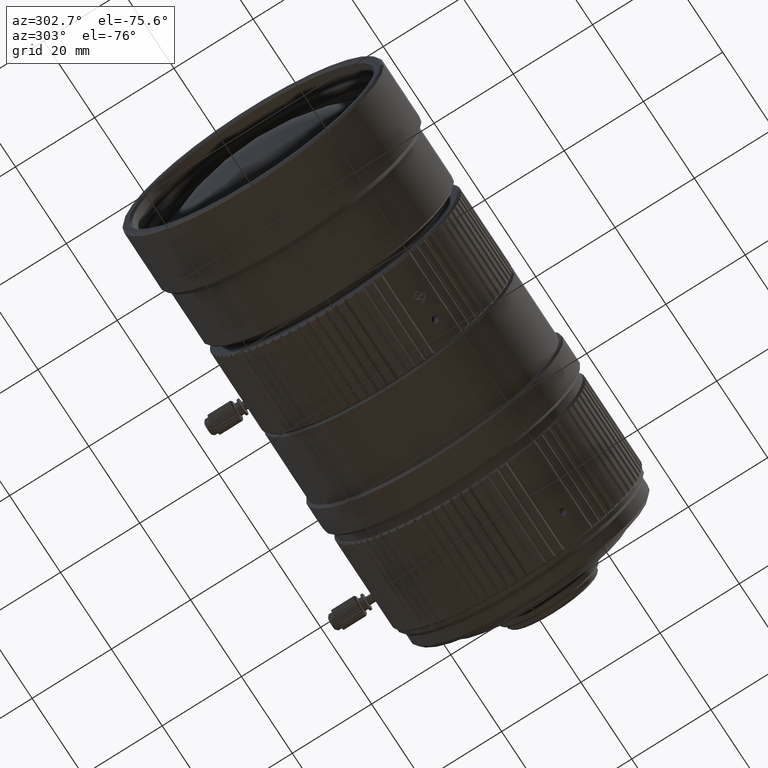
[diagram: clean part render]
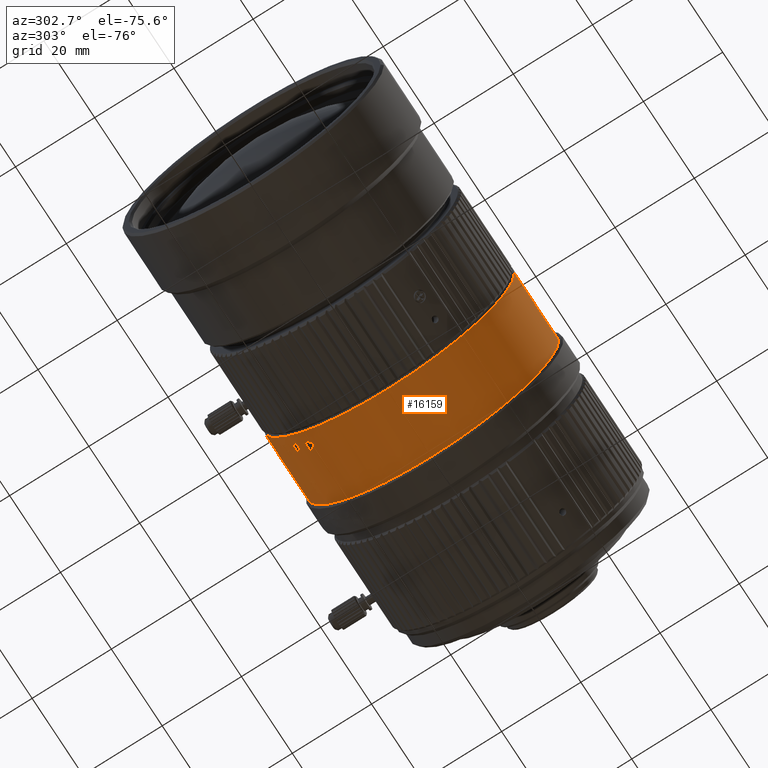
[diagram: same view with one face highlighted and labeled with its STEP entity id]
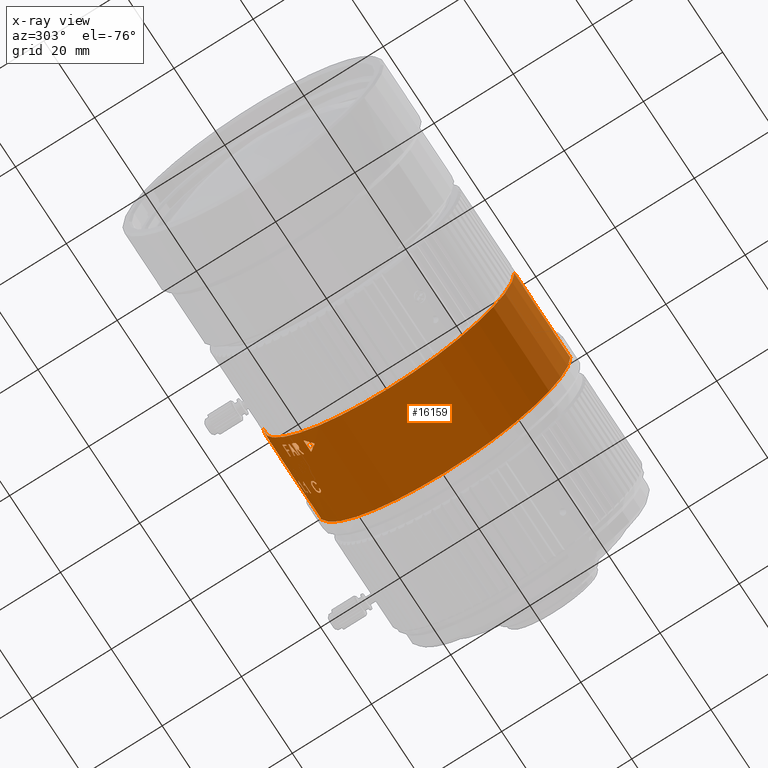
[diagram: x-ray of the same camera — body ghosted, the highlighted face saturated]
A machine part, auxiliary view. The second image highlights one B-rep face of the part: STEP entity #16159.
The next image is the same camera in x-ray: the body ghosted, the highlighted face saturated — about 0% of this face is hidden behind the body in this view.
In plain terms, the highlighted cylindrical surface (partial cylindrical patch) has radius 31.7 mm, axis along (-1, 0, 0).
Its self-contained STEP definition (entity closure, byte-faithful):
#193 = LINE ( 'NONE', #10280, #30644 ) ;
#210 = B_SPLINE_CURVE_WITH_KNOTS ( 'NONE', 3,
 ( #27335, #42246, #83740, #45263 ),
 .UNSPECIFIED., .F., .F.,
 ( 4, 4 ),
 ( 4.167354370948970213E-08, 1.000000000000000000 ),
 .UNSPECIFIED. ) ;
#300 = CARTESIAN_POINT ( 'NONE',  ( 32.41228070175399978, 28.10031740469357686, -14.67181521678477019 ) ) ;
#408 = CARTESIAN_POINT ( 'NONE',  ( 41.56668323426981715, 31.56863735184727560, -2.883011581024027770 ) ) ;
#465 = EDGE_CURVE ( 'NONE', #104667, #97776, #31164, .T. ) ;
#634 = EDGE_LOOP ( 'NONE', ( #52837, #72519, #51322, #28625, #102488, #17563, #81271, #102353 ) ) ;
#951 = CARTESIAN_POINT ( 'NONE',  ( 32.10233918128633235, 26.20620866454695985, -17.83623644010592457 ) ) ;
#985 = DIRECTION ( 'NONE',  ( -4.377851043474591935E-16, -1.000000000000000000, 0.000000000000000000 ) ) ;
#1143 = CARTESIAN_POINT ( 'NONE',  ( 39.30872246770148593, 26.80952477746252427, -16.91580364655804303 ) ) ;
#1222 = CARTESIAN_POINT ( 'NONE',  ( 38.96153846153789857, 26.76059067308387540, -16.99296286195164285 ) ) ;
#1255 = CARTESIAN_POINT ( 'NONE',  ( 38.99999999999998579, 3.312877487234791001E-14, 1.857100332100287416E-15 ) ) ;
#1297 = CARTESIAN_POINT ( 'NONE',  ( 49.50000000000001421, 31.69449529679860333, -0.5907350346921764750 ) ) ;
#1308 = EDGE_CURVE ( 'NONE', #52820, #44942, #4458, .T. ) ;
#1441 = LINE ( 'NONE', #41394, #102516 ) ;
#1541 = CARTESIAN_POINT ( 'NONE',  ( 39.19939120932968279, 30.30239701440893896, -9.308901713139363210 ) ) ;
#1940 = ORIENTED_EDGE ( 'NONE', *, *, #27490, .T. ) ;
#2064 = CARTESIAN_POINT ( 'NONE',  ( 39.74999999999975131, 30.50150450491772247, -8.634131278621930861 ) ) ;
#2099 = VECTOR ( 'NONE', #46837, 1000.000000000000000 ) ;
#2320 = VERTEX_POINT ( 'NONE', #12153 ) ;
#2518 = CARTESIAN_POINT ( 'NONE',  ( 31.48245614035099393, 26.72109128020910873, -17.05500749911107050 ) ) ;
#2590 = CARTESIAN_POINT ( 'NONE',  ( 49.50000000000001421, 29.37888915872233753, -11.90675740071613298 ) ) ;
#2666 = AXIS2_PLACEMENT_3D ( 'NONE', #20263, #11159, #100070 ) ;
#2695 = CARTESIAN_POINT ( 'NONE',  ( 39.00133069535483799, 31.49790854354246505, -3.574777583587379848 ) ) ;
#3243 = EDGE_LOOP ( 'NONE', ( #29722, #71525, #23972, #49913, #14687 ) ) ;
#3266 = CIRCLE ( 'NONE', #35586, 31.69999999999999929 ) ;
#3321 = CARTESIAN_POINT ( 'NONE',  ( 39.95032098673544851, 30.41642460780103363, -8.929418632969055025 ) ) ;
#3352 = CARTESIAN_POINT ( 'NONE',  ( 41.03966346153799805, 26.07946198499074342, -18.02086742011647402 ) ) ;
#3355 = CARTESIAN_POINT ( 'NONE',  ( 39.92427884615455014, 26.36044700844664845, -17.60729489486899979 ) ) ;
#3393 = CARTESIAN_POINT ( 'NONE',  ( 32.41228070175399978, 26.85243140072906343, -16.84746057627503646 ) ) ;
#3398 = VERTEX_POINT ( 'NONE', #22146 ) ;
#3521 = CARTESIAN_POINT ( 'NONE',  ( 39.72452330224776773, 31.69974983222048692, -0.1415447074715102116 ) ) ;
#3528 = CARTESIAN_POINT ( 'NONE',  ( 39.08510095388394490, 31.43762358475347796, -4.070742786001120272 ) ) ;
#4027 = EDGE_CURVE ( 'NONE', #29706, #71875, #92953, .T. ) ;
#4101 = ORIENTED_EDGE ( 'NONE', *, *, #13331, .T. ) ;
#4169 = CARTESIAN_POINT ( 'NONE',  ( 49.50000000000000000, 3.882130353309943381E-15, -31.70000000002390905 ) ) ;
#4366 = DIRECTION ( 'NONE',  ( 1.000000000000000000, -4.482919468517999733E-16, 1.614869854000199883E-16 ) ) ;
#4371 = CARTESIAN_POINT ( 'NONE',  ( 30.40000006251059617, 21.53314541774336988, -23.28011272013181809 ) ) ;
#4445 = ORIENTED_EDGE ( 'NONE', *, *, #12956, .T. ) ;
#4458 = CIRCLE ( 'NONE', #97964, 31.69999999999999929 ) ;
#4463 = ORIENTED_EDGE ( 'NONE', *, *, #100818, .T. ) ;
#4609 = ORIENTED_EDGE ( 'NONE', *, *, #91508, .T. ) ;
#4636 = DIRECTION ( 'NONE',  ( -4.377851043474591935E-16, -1.000000000000000000, 0.000000000000000000 ) ) ;
#4687 = VERTEX_POINT ( 'NONE', #9896 ) ;
#4924 = CARTESIAN_POINT ( 'NONE',  ( 39.30960677289672134, 26.72413712955343357, -17.05046420687913766 ) ) ;
#4968 = EDGE_CURVE ( 'NONE', #54477, #2320, #17905, .T. ) ;
#4976 = CARTESIAN_POINT ( 'NONE',  ( 42.02948062230483117, 31.46802414711990536, -3.828877455027395182 ) ) ;
#5010 = CARTESIAN_POINT ( 'NONE',  ( 41.99999999999999289, 31.69932966469246693, -0.2061523930266457028 ) ) ;
#5113 = CARTESIAN_POINT ( 'NONE',  ( 29.41349084665305824, 25.19922606042946001, -19.23259532516822645 ) ) ;
#5119 = DIRECTION ( 'NONE',  ( -1.000000000000000000, 4.482919468517999733E-16, -1.614869854000199883E-16 ) ) ;
#5332 = EDGE_CURVE ( 'NONE', #26052, #23027, #87459, .T. ) ;
#5337 = CARTESIAN_POINT ( 'NONE',  ( 49.50000000000001421, 25.75724838030216191, -18.47847818072210657 ) ) ;
#5412 = CARTESIAN_POINT ( 'NONE',  ( 41.66090369432429696, 31.56406918224252678, -2.932602374576829263 ) ) ;
#5458 = VERTEX_POINT ( 'NONE', #54599 ) ;
#5469 = CARTESIAN_POINT ( 'NONE',  ( 38.99999999999999289, 28.95751484200477321, -12.89776469684089300 ) ) ;
#5615 = ORIENTED_EDGE ( 'NONE', *, *, #48970, .T. ) ;
#5926 = CARTESIAN_POINT ( 'NONE',  ( 40.62741817552571177, 31.58442874748691054, -2.704415483380309571 ) ) ;
#6142 = CARTESIAN_POINT ( 'NONE',  ( 41.32618098091243297, 26.39613276750645809, -17.55380766739424558 ) ) ;
#6166 = CIRCLE ( 'NONE', #87770, 31.69999999999999929 ) ;
#6365 = ORIENTED_EDGE ( 'NONE', *, *, #29262, .T. ) ;
#6529 = VERTEX_POINT ( 'NONE', #92650 ) ;
#6542 = CARTESIAN_POINT ( 'NONE',  ( 40.86107268894938471, 31.36358772526553196, -4.606077634814152333 ) ) ;
#6565 = VERTEX_POINT ( 'NONE', #43185 ) ;
#6739 = CARTESIAN_POINT ( 'NONE',  ( 41.68529296170780896, 26.85416658881933216, -16.84484019779868191 ) ) ;
#6980 = CARTESIAN_POINT ( 'NONE',  ( 31.97953216374233776, 24.99043960777227724, -19.50415980092267887 ) ) ;
#7061 = DIRECTION ( 'NONE',  ( -4.377851043474591935E-16, -1.000000000000000000, 0.000000000000000000 ) ) ;
#7070 = CARTESIAN_POINT ( 'NONE',  ( 30.21090715281429695, 24.65230532867278512, -19.92871905542597943 ) ) ;
#7103 = CARTESIAN_POINT ( 'NONE',  ( 30.90633306264810898, 24.81588883902259468, -19.72478196794551408 ) ) ;
#7104 = CARTESIAN_POINT ( 'NONE',  ( 30.38888888888866546, 26.76618407087137541, -16.98666790975456564 ) ) ;
#7191 = VERTEX_POINT ( 'NONE', #44742 ) ;
#7202 = CYLINDRICAL_SURFACE ( 'NONE', #24941, 31.69999999999999929 ) ;
#7255 = EDGE_CURVE ( 'NONE', #19636, #80676, #69730, .T. ) ;
#7478 = CARTESIAN_POINT ( 'NONE',  ( 49.50000000000001421, 31.65200450040898161, -1.743734815300491903 ) ) ;
#7487 = CARTESIAN_POINT ( 'NONE',  ( 41.74700719550620676, 27.24325297857091499, -16.20832552718400876 ) ) ;
#7620 = CARTESIAN_POINT ( 'NONE',  ( 31.06140350877199907, 25.01146316160959771, -19.47605479853267596 ) ) ;
#7670 = CARTESIAN_POINT ( 'NONE',  ( 41.10909659042383169, 26.09001212534773728, -18.00559945448712185 ) ) ;
#7718 = DIRECTION ( 'NONE',  ( -1.000000000000000000, 4.239707319298500222E-16, 1.614869854000199883E-16 ) ) ;
#7772 = DIRECTION ( 'NONE',  ( -4.377851043474591935E-16, -1.000000000000000000, 0.000000000000000000 ) ) ;
#7796 = DIRECTION ( 'NONE',  ( -4.377851043474591935E-16, -1.000000000000000000, 0.000000000000000000 ) ) ;
#7968 = CIRCLE ( 'NONE', #87842, 31.69999999999999929 ) ;
#7970 = VECTOR ( 'NONE', #77735, 1000.000000000000000 ) ;
#8006 = VERTEX_POINT ( 'NONE', #104107 ) ;
#8106 = CARTESIAN_POINT ( 'NONE',  ( 32.39999999999999858, 22.76403252652616160, -22.06102497916315031 ) ) ;
#8142 = CARTESIAN_POINT ( 'NONE',  ( 41.99999999999998579, 3.178389903179250477E-14, 2.341561288300347800E-15 ) ) ;
#8203 = CARTESIAN_POINT ( 'NONE',  ( 42.01303358238266838, 26.60191799973906868, -17.24044687551867128 ) ) ;
#8592 = CARTESIAN_POINT ( 'NONE',  ( 39.58879901480578667, 26.17483631368503438, -17.88207553469833400 ) ) ;
#8743 = VERTEX_POINT ( 'NONE', #47446 ) ;
#8882 = EDGE_CURVE ( 'NONE', #16909, #104667, #89820, .T. ) ;
#9057 = VECTOR ( 'NONE', #68436, 1000.000000000000000 ) ;
#9063 = CIRCLE ( 'NONE', #37972, 31.69999999999999929 ) ;
#9106 = CARTESIAN_POINT ( 'NONE',  ( 39.05026988334295623, 26.48205981877934789, -17.42430126409644231 ) ) ;
#9113 = CARTESIAN_POINT ( 'NONE',  ( 38.96153846153789857, 26.76059067308387540, -16.99296286195164285 ) ) ;
#9459 = CARTESIAN_POINT ( 'NONE',  ( 31.48245614035099393, 26.29790206350583759, -17.70057476632488047 ) ) ;
#9889 = CARTESIAN_POINT ( 'NONE',  ( 38.99999999999999289, 31.69449529679861755, -0.5907350346921803608 ) ) ;
#9896 = CARTESIAN_POINT ( 'NONE',  ( 27.49999999999998224, -31.69999999996887041, 1.922430259171951161E-15 ) ) ;
#10164 = CARTESIAN_POINT ( 'NONE',  ( 40.18001424964626267, 31.58386134508033649, -2.711128736514997417 ) ) ;
#10168 = CARTESIAN_POINT ( 'NONE',  ( 38.96272530027545145, 26.72544750363371335, -17.04830647567309398 ) ) ;
#10184 = CARTESIAN_POINT ( 'NONE',  ( 40.47596153846200195, 27.26241349580597984, -16.17562395654948304 ) ) ;
#10280 = CARTESIAN_POINT ( 'NONE',  ( 49.50000000000001421, 27.37929552121682875, -15.97698897670889551 ) ) ;
#10590 = VECTOR ( 'NONE', #96187, 1000.000000000000000 ) ;
#10665 = CARTESIAN_POINT ( 'NONE',  ( 31.79239766081867202, 26.76513911627959885, -16.98599514315657544 ) ) ;
#10690 = CARTESIAN_POINT ( 'NONE',  ( 39.99809985793768874, 27.45027288790829445, -15.85475655791269567 ) ) ;
#10840 = ORIENTED_EDGE ( 'NONE', *, *, #4027, .T. ) ;
#11159 = DIRECTION ( 'NONE',  ( -1.000000000000000000, 4.482919468517999733E-16, -1.614869854000199883E-16 ) ) ;
#11275 = CARTESIAN_POINT ( 'NONE',  ( 29.90000003125529915, 22.16133832857667940, -22.68292492889935374 ) ) ;
#11487 = CARTESIAN_POINT ( 'NONE',  ( 39.00000000000000000, 31.48806045234796258, -3.659514851627080567 ) ) ;
#11513 = CARTESIAN_POINT ( 'NONE',  ( 39.42629635638290608, 31.70000000000005613, 4.410754666237319418E-14 ) ) ;
#11628 = AXIS2_PLACEMENT_3D ( 'NONE', #98790, #97219, #7796 ) ;
#11634 = CARTESIAN_POINT ( 'NONE',  ( 41.69230769230806999, 26.77732940509509163, -16.96657390079155903 ) ) ;
#12139 = AXIS2_PLACEMENT_3D ( 'NONE', #1255, #82176, #33762 ) ;
#12153 = CARTESIAN_POINT ( 'NONE',  ( 38.99999999999999289, 30.26520886519502440, -9.429057871607456676 ) ) ;
#12374 = CARTESIAN_POINT ( 'NONE',  ( 39.30769230769200107, 26.77153817265076441, -16.97571040841339141 ) ) ;
#12639 = CARTESIAN_POINT ( 'NONE',  ( 30.38888888888866546, 26.25322066242772223, -17.76918403421868575 ) ) ;
#12956 = EDGE_CURVE ( 'NONE', #80664, #19636, #72201, .T. ) ;
#13226 = VERTEX_POINT ( 'NONE', #85437 ) ;
#13331 = EDGE_CURVE ( 'NONE', #18615, #24870, #210, .T. ) ;
#13489 = CIRCLE ( 'NONE', #79766, 31.69999999999999929 ) ;
#13536 = CARTESIAN_POINT ( 'NONE',  ( 41.61538461538498979, 31.65200450040898872, -1.743734815300496122 ) ) ;
#13857 = VERTEX_POINT ( 'NONE', #82661 ) ;
#14078 = VECTOR ( 'NONE', #68442, 1000.000000000000000 ) ;
#14170 = EDGE_CURVE ( 'NONE', #54617, #104954, #33315, .T. ) ;
#14212 = CARTESIAN_POINT ( 'NONE',  ( 32.41228070175399267, 3.608199638187177726E-14, 7.932694019650067409E-16 ) ) ;
#14416 = CARTESIAN_POINT ( 'NONE',  ( 40.47776442307699796, 27.47586341910849583, -15.81034248125261854 ) ) ;
#14438 = CIRCLE ( 'NONE', #97774, 31.69999999999999929 ) ;
#14687 = ORIENTED_EDGE ( 'NONE', *, *, #465, .T. ) ;
#14714 = CARTESIAN_POINT ( 'NONE',  ( 41.65082473607695590, 26.92833163436367983, -16.72602343233931776 ) ) ;
#14883 = CARTESIAN_POINT ( 'NONE',  ( 42.01215366910309257, 31.51599978329210927, -3.411096090671935865 ) ) ;
#14966 = CARTESIAN_POINT ( 'NONE',  ( 41.51764703171797777, 31.57055674278646507, -2.861873964889689148 ) ) ;
#15054 = VECTOR ( 'NONE', #30962, 1000.000000000000000 ) ;
#15099 = CARTESIAN_POINT ( 'NONE',  ( 31.04931904892072936, 24.98509331233540109, -19.50991938355879185 ) ) ;
#15202 = VERTEX_POINT ( 'NONE', #2518 ) ;
#15211 = FACE_BOUND ( 'NONE', #50432, .T. ) ;
#15261 = CARTESIAN_POINT ( 'NONE',  ( 41.42497689005636374, 27.11932676949222198, -16.41447510458993975 ) ) ;
#15277 = EDGE_CURVE ( 'NONE', #13226, #28707, #6166, .T. ) ;
#15582 = CARTESIAN_POINT ( 'NONE',  ( 31.48245614035098683, 3.649882924473375080E-14, 6.431148365931400267E-16 ) ) ;
#15673 = CARTESIAN_POINT ( 'NONE',  ( 42.03690411744768340, 26.71758091611928876, -17.06065718501701056 ) ) ;
#15703 = CARTESIAN_POINT ( 'NONE',  ( 39.44400474524526601, 31.39090674898364952, -4.416118506072872485 ) ) ;
#15710 = DIRECTION ( 'NONE',  ( -1.000000000000000000, 4.482919468517999733E-16, -1.614869854000199883E-16 ) ) ;
#15712 = CARTESIAN_POINT ( 'NONE',  ( 49.50000000000002132, 31.69999999999998508, 6.605461973230377020E-14 ) ) ;
#15822 = CIRCLE ( 'NONE', #48343, 31.69999999999999929 ) ;
#16061 = CARTESIAN_POINT ( 'NONE',  ( 39.83353365384599698, 26.12311451495431669, -17.95753012077621591 ) ) ;
#16136 = CARTESIAN_POINT ( 'NONE',  ( 31.00197475344621623, 24.90791825092985334, -19.60834762777638218 ) ) ;
#16159 = ADVANCED_FACE ( 'NONE', ( #24759, #89174, #80142, #16239, #48700, #39704, #64169, #88125, #15211, #48180, #80651 ), #7202, .T. ) ;
#16239 = FACE_BOUND ( 'NONE', #81529, .T. ) ;
#16263 = ORIENTED_EDGE ( 'NONE', *, *, #65851, .T. ) ;
#16302 = CARTESIAN_POINT ( 'NONE',  ( 27.49999999999999645, -1.330784933945297901E-15, 6.394884621840944587E-14 ) ) ;
#16534 = CARTESIAN_POINT ( 'NONE',  ( 41.74939903846200195, 31.55837487463098512, -2.993154735770414021 ) ) ;
#16570 = CARTESIAN_POINT ( 'NONE',  ( 31.48245614035099393, 26.72109128020910873, -17.05500749911107050 ) ) ;
#16604 = B_SPLINE_CURVE_WITH_KNOTS ( 'NONE', 3,
 ( #77764, #69248, #37847, #61798, #94244, #21340, #53813, #59691, #92160, #19243, #79862, #55913 ),
 .UNSPECIFIED., .F., .F.,
 ( 4, 2, 2, 2, 2, 4 ),
 ( 1.176270439215444699E-15, 0.0002844946550434949680, 0.0005689893100858136850, 0.0008534839651281324021, 0.0009957312926492981574, 0.001137978620170464021 ),
 .UNSPECIFIED. ) ;
#16638 = CARTESIAN_POINT ( 'NONE',  ( 30.02924350300538237, 24.66422193139406360, -19.91397069539154430 ) ) ;
#16840 = CIRCLE ( 'NONE', #21956, 31.69999999999999929 ) ;
#16876 = DIRECTION ( 'NONE',  ( -4.377851043474591935E-16, -1.000000000000000000, 0.000000000000000000 ) ) ;
#16909 = VERTEX_POINT ( 'NONE', #16534 ) ;
#17129 = CARTESIAN_POINT ( 'NONE',  ( 39.03335553149750581, 27.01268561462519457, -16.58953402301677826 ) ) ;
#17287 = LINE ( 'NONE', #1297, #30595 ) ;
#17455 = CARTESIAN_POINT ( 'NONE',  ( 41.99999999999998579, 3.178389903179250477E-14, 2.341561288300347800E-15 ) ) ;
#17563 = ORIENTED_EDGE ( 'NONE', *, *, #22501, .T. ) ;
#17741 = DIRECTION ( 'NONE',  ( -1.000000000000000000, 4.482919468517999733E-16, -1.614869854000199883E-16 ) ) ;
#17810 = CARTESIAN_POINT ( 'NONE',  ( 31.11403508771899240, 25.24673509103118718, -19.17009043388413758 ) ) ;
#17848 = CARTESIAN_POINT ( 'NONE',  ( 41.99999999999999289, 31.62851862069600273, -2.127630104197695715 ) ) ;
#17905 = B_SPLINE_CURVE_WITH_KNOTS ( 'NONE', 3,
 ( #2064, #34559, #44133, #42015, #19107, #76575, #74468, #1541, #34042, #66474, #98933, #18050 ),
 .UNSPECIFIED., .F., .F.,
 ( 4, 2, 2, 2, 2, 4 ),
 ( 2.242039328251622494E-15, 0.0002849802902202463800, 0.0005699605804382507383, 0.0008549408706562550966, 0.0009974310157652567337, 0.001139921160874258262 ),
 .UNSPECIFIED. ) ;
#17988 = ORIENTED_EDGE ( 'NONE', *, *, #53458, .T. ) ;
#18050 = CARTESIAN_POINT ( 'NONE',  ( 38.99999999999999289, 30.26520886519502440, -9.429057871607456676 ) ) ;
#18170 = CARTESIAN_POINT ( 'NONE',  ( 38.99537604095029764, 26.58496322053428429, -17.26654778059850059 ) ) ;
#18189 = CARTESIAN_POINT ( 'NONE',  ( 39.34006655105680039, 26.92049024770213705, -16.73863762754438866 ) ) ;
#18216 = EDGE_CURVE ( 'NONE', #58696, #52820, #99828, .T. ) ;
#18566 = EDGE_CURVE ( 'NONE', #91404, #32361, #7968, .T. ) ;
#18598 = LINE ( 'NONE', #2590, #50318 ) ;
#18615 = VERTEX_POINT ( 'NONE', #36086 ) ;
#18697 = VERTEX_POINT ( 'NONE', #27730 ) ;
#18973 = DIRECTION ( 'NONE',  ( -1.000000000000000000, 4.239707319298500222E-16, 1.614869854000199883E-16 ) ) ;
#19107 = CARTESIAN_POINT ( 'NONE',  ( 39.49959117051879076, 30.38948540297801770, -9.020768768375557300 ) ) ;
#19205 = AXIS2_PLACEMENT_3D ( 'NONE', #66095, #42164, #98550 ) ;
#19221 = CARTESIAN_POINT ( 'NONE',  ( 39.00883519407452127, 31.50737797818085184, -3.490270809869461033 ) ) ;
#19243 = CARTESIAN_POINT ( 'NONE',  ( 39.08368433621308213, 29.07505471178438938, -12.63059313414006901 ) ) ;
#19459 = B_SPLINE_CURVE_WITH_KNOTS ( 'NONE', 3,
 ( #39080, #71535, #7104, #31624 ),
 .UNSPECIFIED., .F., .F.,
 ( 4, 4 ),
 ( 0.000000000000000000, 1.000000000000000000 ),
 .UNSPECIFIED. ) ;
#19636 = VERTEX_POINT ( 'NONE', #23293 ) ;
#19674 = B_SPLINE_CURVE_WITH_KNOTS ( 'NONE', 3,
 ( #3355, #51801, #35846, #43840, #28400, #85326, #45398, #84269, #4924, #12374 ),
 .UNSPECIFIED., .F., .F.,
 ( 4, 2, 2, 2, 4 ),
 ( 2.398032943596257815E-15, 0.0002654548404454897697, 0.0005309096808885815011, 0.0007963645213316732866, 0.001061819361774764964 ),
 .UNSPECIFIED. ) ;
#20159 = EDGE_CURVE ( 'NONE', #100801, #77209, #79560, .T. ) ;
#20263 = CARTESIAN_POINT ( 'NONE',  ( 38.99999999999998579, 3.312877487234791001E-14, 1.857100332100287416E-15 ) ) ;
#20603 = EDGE_CURVE ( 'NONE', #89779, #74966, #72712, .T. ) ;
#20678 = CARTESIAN_POINT ( 'NONE',  ( 32.41228070175399978, 25.91986234176789949, -18.24967770081993024 ) ) ;
#20911 = DIRECTION ( 'NONE',  ( 1.000000000000000000, -4.482919468517999733E-16, 1.614869854000199883E-16 ) ) ;
#20986 = VERTEX_POINT ( 'NONE', #26941 ) ;
#21177 = EDGE_CURVE ( 'NONE', #79478, #97208, #55794, .T. ) ;
#21340 = CARTESIAN_POINT ( 'NONE',  ( 39.37541149176356470, 29.17014528485365332, -12.40958110159080974 ) ) ;
#21631 = CARTESIAN_POINT ( 'NONE',  ( 41.61538461538498979, 31.62851862069600273, -2.127630104197695715 ) ) ;
#21689 = VERTEX_POINT ( 'NONE', #86853 ) ;
#21715 = CARTESIAN_POINT ( 'NONE',  ( 40.07836754556505809, 29.35495953820964132, -11.96580165978633481 ) ) ;
#21896 = ORIENTED_EDGE ( 'NONE', *, *, #64533, .T. ) ;
#21928 = CARTESIAN_POINT ( 'NONE',  ( 40.47776442307699796, 27.47586341910849583, -15.81034248125261854 ) ) ;
#21956 = AXIS2_PLACEMENT_3D ( 'NONE', #82204, #25274, #43357 ) ;
#21992 = DIRECTION ( 'NONE',  ( -1.000000000000000000, 4.482919468517999733E-16, -1.614869854000199883E-16 ) ) ;
#22005 = CARTESIAN_POINT ( 'NONE',  ( 42.03846153846200906, 31.48806045234790574, -3.659514851627386545 ) ) ;
#22146 = CARTESIAN_POINT ( 'NONE',  ( 39.66225961538467004, 29.11186791131103391, -12.54548312000746968 ) ) ;
#22201 = CARTESIAN_POINT ( 'NONE',  ( 41.04782271307654185, 27.22629231569649377, -16.23637464345157255 ) ) ;
#22211 = B_SPLINE_CURVE_WITH_KNOTS ( 'NONE', 3,
 ( #71491, #87449, #6542, #103919, #70430, #39040, #45967, #62448, #38503, #70952, #63503, #4976, #94909, #22005 ),
 .UNSPECIFIED., .F., .F.,
 ( 4, 2, 2, 2, 2, 2, 4 ),
 ( 2.081668171172168513E-17, 0.0005103236560353468414, 0.001020647312070672866, 0.001275809140088336041, 0.001530970968105998782, 0.001786132796123661741, 0.002041294624141325783 ),
 .UNSPECIFIED. ) ;
#22400 = AXIS2_PLACEMENT_3D ( 'NONE', #85589, #85073, #93567 ) ;
#22501 = EDGE_CURVE ( 'NONE', #21689, #8006, #62502, .T. ) ;
#22629 = CARTESIAN_POINT ( 'NONE',  ( 31.96198830409333880, 24.73655870354996367, -19.82528804890051433 ) ) ;
#22654 = DIRECTION ( 'NONE',  ( -4.377851043474591935E-16, -1.000000000000000000, 0.000000000000000000 ) ) ;
#22657 = CARTESIAN_POINT ( 'NONE',  ( 41.14064801194626142, 26.34663974338762316, -17.62800507532956473 ) ) ;
#22745 = DIRECTION ( 'NONE',  ( -4.377851043474591935E-16, -1.000000000000000000, 0.000000000000000000 ) ) ;
#22889 = CARTESIAN_POINT ( 'NONE',  ( 41.79654824908831046, 31.55441477266710137, -3.034908134225573484 ) ) ;
#22933 = CARTESIAN_POINT ( 'NONE',  ( 41.99999999999998579, 3.178389903179250477E-14, 2.341561288300347800E-15 ) ) ;
#22957 = CARTESIAN_POINT ( 'NONE',  ( 42.03846153846206590, 26.75607964732139266, -17.00006476182357318 ) ) ;
#23027 = VERTEX_POINT ( 'NONE', #49154 ) ;
#23069 = CARTESIAN_POINT ( 'NONE',  ( 49.50000000000001421, 28.95751484200476966, -12.89776469684088589 ) ) ;
#23272 = VECTOR ( 'NONE', #44293, 1000.000000000000000 ) ;
#23293 = CARTESIAN_POINT ( 'NONE',  ( 31.06140350877199197, 27.91128868189090184, -15.02830543062493973 ) ) ;
#23417 = CARTESIAN_POINT ( 'NONE',  ( 42.03846153846200906, 31.48806045234790574, -3.659514851627386545 ) ) ;
#23693 = CARTESIAN_POINT ( 'NONE',  ( 31.06140350877199907, 25.01146316160959771, -19.47605479853267596 ) ) ;
#23714 = CARTESIAN_POINT ( 'NONE',  ( 40.35040865946214694, 31.36278229600643996, -4.611495243288498358 ) ) ;
#23732 = VECTOR ( 'NONE', #68822, 1000.000000000000000 ) ;
#23972 = ORIENTED_EDGE ( 'NONE', *, *, #44111, .T. ) ;
#24085 = ORIENTED_EDGE ( 'NONE', *, *, #68531, .T. ) ;
#24206 = CARTESIAN_POINT ( 'NONE',  ( 41.93146364733351561, 26.45110837289668027, -17.47133738728134844 ) ) ;
#24407 = EDGE_LOOP ( 'NONE', ( #92692, #82311, #43302, #41104, #62166, #16263, #74279, #41114, #4445, #31816 ) ) ;
#24595 = CARTESIAN_POINT ( 'NONE',  ( 39.14414243382712044, 27.15091737461097310, -16.36303696074441660 ) ) ;
#24650 = CIRCLE ( 'NONE', #84132, 31.69999999999999929 ) ;
#24661 = CARTESIAN_POINT ( 'NONE',  ( 30.70569791862701337, 24.70765737233465842, -19.86012314631587472 ) ) ;
#24759 = FACE_OUTER_BOUND ( 'NONE', #82021, .T. ) ;
#24823 = DIRECTION ( 'NONE',  ( -4.377851043474591935E-16, -1.000000000000000000, 0.000000000000000000 ) ) ;
#24870 = VERTEX_POINT ( 'NONE', #8106 ) ;
#24917 = ORIENTED_EDGE ( 'NONE', *, *, #31555, .T. ) ;
#24941 = AXIS2_PLACEMENT_3D ( 'NONE', #98177, #7718, #105101 ) ;
#25274 = DIRECTION ( 'NONE',  ( -1.000000000000000000, 4.482919468517999733E-16, -1.614869854000199883E-16 ) ) ;
#26052 = VERTEX_POINT ( 'NONE', #80290 ) ;
#26167 = CARTESIAN_POINT ( 'NONE',  ( 40.28424665184793696, 27.47317262409016436, -15.81502299738591866 ) ) ;
#26177 = CARTESIAN_POINT ( 'NONE',  ( 40.19374889574983456, 27.25226097034633810, -16.19272486459903604 ) ) ;
#26240 = CARTESIAN_POINT ( 'NONE',  ( 39.87718434986507532, 30.38335415552185381, -9.041304845263894663 ) ) ;
#26261 = CARTESIAN_POINT ( 'NONE',  ( 49.50000000000001421, 29.11186791131227736, -12.54548312000410526 ) ) ;
#26623 = VERTEX_POINT ( 'NONE', #77238 ) ;
#26692 = CARTESIAN_POINT ( 'NONE',  ( 39.54984156195573064, 27.36338462503519509, -16.00471893727963391 ) ) ;
#26851 = AXIS2_PLACEMENT_3D ( 'NONE', #89898, #59008, #985 ) ;
#26941 = CARTESIAN_POINT ( 'NONE',  ( 32.41228070175399978, 24.59637144336989678, -19.99771266469691611 ) ) ;
#27335 = CARTESIAN_POINT ( 'NONE',  ( 30.90000018753142186, 20.88156154464350323, -23.85058463554440777 ) ) ;
#27490 = EDGE_CURVE ( 'NONE', #103553, #86891, #27747, .T. ) ;
#27595 = EDGE_CURVE ( 'NONE', #87238, #89667, #30053, .T. ) ;
#27730 = CARTESIAN_POINT ( 'NONE',  ( 29.41228070175399267, 27.20077775554768351, -16.27905677529580686 ) ) ;
#27747 = CIRCLE ( 'NONE', #31391, 31.69999999999999929 ) ;
#27767 = ORIENTED_EDGE ( 'NONE', *, *, #44795, .T. ) ;
#27776 = CARTESIAN_POINT ( 'NONE',  ( 40.40508303819737534, 27.26167668673020827, -16.17686577533471493 ) ) ;
#27870 = CARTESIAN_POINT ( 'NONE',  ( 41.00681089743566332, 26.15963247015714543, -17.90484619475208206 ) ) ;
#28018 = CARTESIAN_POINT ( 'NONE',  ( 29.37719298245599830, 26.41487446957357221, -17.52553584791837693 ) ) ;
#28040 = CARTESIAN_POINT ( 'NONE',  ( 39.17477313961639140, 31.41891964995831898, -4.212672728315225434 ) ) ;
#28110 = CARTESIAN_POINT ( 'NONE',  ( 31.06140350877198131, 3.668758374867138210E-14, 5.751203164247008477E-16 ) ) ;
#28119 = CARTESIAN_POINT ( 'NONE',  ( 40.62046876270141382, 27.26097408233984609, -16.17805104730115673 ) ) ;
#28346 = DIRECTION ( 'NONE',  ( -4.377851043474591935E-16, -1.000000000000000000, 0.000000000000000000 ) ) ;
#28400 = CARTESIAN_POINT ( 'NONE',  ( 39.53080400447169040, 26.46959121901479506, -17.44290902714419289 ) ) ;
#28609 = CARTESIAN_POINT ( 'NONE',  ( 39.30769230769200107, 26.77153817265076441, -16.97571040841339141 ) ) ;
#28625 = ORIENTED_EDGE ( 'NONE', *, *, #63156, .T. ) ;
#28707 = VERTEX_POINT ( 'NONE', #79117 ) ;
#28886 = DIRECTION ( 'NONE',  ( -1.000000000000000000, 4.482919468517999733E-16, -1.614869854000199883E-16 ) ) ;
#29114 = CARTESIAN_POINT ( 'NONE',  ( 41.99999999999999289, 29.81891875969683880, -10.75741995101993354 ) ) ;
#29119 = CARTESIAN_POINT ( 'NONE',  ( 29.37719298245598409, 3.744260176442186941E-14, 3.031422357509496536E-16 ) ) ;
#29184 = EDGE_CURVE ( 'NONE', #76715, #75510, #89290, .T. ) ;
#29208 = CARTESIAN_POINT ( 'NONE',  ( 39.98541288189276344, 29.28491954627802585, -12.13619289422283565 ) ) ;
#29241 = VERTEX_POINT ( 'NONE', #63017 ) ;
#29262 = EDGE_CURVE ( 'NONE', #83254, #43618, #14438, .T. ) ;
#29275 = EDGE_CURVE ( 'NONE', #62196, #51047, #19459, .T. ) ;
#29412 = VECTOR ( 'NONE', #61753, 1000.000000000000000 ) ;
#29629 = VECTOR ( 'NONE', #21992, 1000.000000000000000 ) ;
#29706 = VERTEX_POINT ( 'NONE', #21928 ) ;
#29720 = CARTESIAN_POINT ( 'NONE',  ( 39.66225961538467004, 29.11186791131103391, -12.54548312000746968 ) ) ;
#29722 = ORIENTED_EDGE ( 'NONE', *, *, #99782, .T. ) ;
#29750 = CARTESIAN_POINT ( 'NONE',  ( 39.89403044871799864, 26.28211640752841660, -17.72456615470612462 ) ) ;
#30053 = B_SPLINE_CURVE_WITH_KNOTS ( 'NONE', 3,
 ( #76537, #100982, #28119, #60560, #86598, #22201, #55200, #54677, #15261, #71683, #87125, #87646, #14714, #6739, #55731, #47203 ),
 .UNSPECIFIED., .F., .F.,
 ( 4, 2, 2, 2, 2, 2, 2, 4 ),
 ( 1.943509738444720492E-16, 0.0002167278570038265744, 0.0004334557140074588055, 0.0008669114280147233219, 0.001083639285018366720, 0.001300367142022010444, 0.001517094999025653951, 0.001733822856029297674 ),
 .UNSPECIFIED. ) ;
#30131 = DIRECTION ( 'NONE',  ( 1.000000000000000000, -4.482919468517999733E-16, 1.614869854000199883E-16 ) ) ;
#30201 = VECTOR ( 'NONE', #17741, 1000.000000000000000 ) ;
#30375 = CARTESIAN_POINT ( 'NONE',  ( 41.99497858116939852, 31.52254205113279895, -3.350031374742444168 ) ) ;
#30447 = CARTESIAN_POINT ( 'NONE',  ( 41.05413162303934627, 31.58168779029228546, -2.736313236499812618 ) ) ;
#30595 = VECTOR ( 'NONE', #48169, 1000.000000000000000 ) ;
#30644 = VECTOR ( 'NONE', #32690, 1000.000000000000000 ) ;
#30658 = VERTEX_POINT ( 'NONE', #34904 ) ;
#30900 = CARTESIAN_POINT ( 'NONE',  ( 42.03373610154293516, 31.50246087423158059, -3.533946483433800800 ) ) ;
#30962 = DIRECTION ( 'NONE',  ( -1.000000000000000000, 4.482919468517999733E-16, -1.614869854000199883E-16 ) ) ;
#30970 = CARTESIAN_POINT ( 'NONE',  ( 41.25364950952540966, 27.40791767527703371, -15.92793251982967817 ) ) ;
#31164 = B_SPLINE_CURVE_WITH_KNOTS ( 'NONE', 3,
 ( #76689, #61257, #10164, #42670, #77217, #34682, #91607, #35201, #92659, #51164, #83628, #19221, #2695, #67628 ),
 .UNSPECIFIED., .F., .F.,
 ( 4, 2, 2, 2, 2, 2, 4 ),
 ( 6.938893903907228378E-18, 0.0005103579806222725314, 0.001020715961244538124, 0.001275894951555670920, 0.001531073941866803716, 0.001786252932177936513, 0.002041431922489069309 ),
 .UNSPECIFIED. ) ;
#31391 = AXIS2_PLACEMENT_3D ( 'NONE', #89348, #66432, #41445 ) ;
#31491 = CARTESIAN_POINT ( 'NONE',  ( 42.03241603737067322, 26.86214011990681527, -16.83226014535033244 ) ) ;
#31555 = EDGE_CURVE ( 'NONE', #24870, #76236, #36767, .T. ) ;
#31624 = CARTESIAN_POINT ( 'NONE',  ( 29.37719298245599120, 26.60723697521256170, -17.23209042875771502 ) ) ;
#31816 = ORIENTED_EDGE ( 'NONE', *, *, #7255, .T. ) ;
#32091 = ORIENTED_EDGE ( 'NONE', *, *, #88845, .T. ) ;
#32145 = CARTESIAN_POINT ( 'NONE',  ( 31.03716961332085944, 24.95866619490945126, -19.54371177790474690 ) ) ;
#32361 = VERTEX_POINT ( 'NONE', #104291 ) ;
#32677 = VERTEX_POINT ( 'NONE', #38168 ) ;
#32690 = DIRECTION ( 'NONE',  ( 1.000000000000000000, -4.482919468517999733E-16, 1.614869854000199883E-16 ) ) ;
#32811 = DIRECTION ( 'NONE',  ( -1.000000000000000000, 4.239707319298500222E-16, 1.614869854000199883E-16 ) ) ;
#32967 = CARTESIAN_POINT ( 'NONE',  ( 42.03846153846206590, 26.75607964732139266, -17.00006476182357318 ) ) ;
#32993 = B_SPLINE_CURVE_WITH_KNOTS ( 'NONE', 3,
 ( #22957, #56478, #31491, #104858, #103821, #55426, #7487, #72954, #30970, #47442, #39985, #87879, #96905, #14416 ),
 .UNSPECIFIED., .F., .F.,
 ( 4, 2, 2, 2, 2, 2, 4 ),
 ( 6.301833763873995919E-15, 0.0002974936902972563873, 0.0005949873805882109580, 0.001189974761170106655, 0.001784962141752002461, 0.002082455832042951448, 0.002379949522333900218 ),
 .UNSPECIFIED. ) ;
#33108 = EDGE_CURVE ( 'NONE', #97208, #3398, #40670, .T. ) ;
#33315 = CIRCLE ( 'NONE', #2666, 31.69999999999999929 ) ;
#33607 = ORIENTED_EDGE ( 'NONE', *, *, #59387, .T. ) ;
#33705 = ORIENTED_EDGE ( 'NONE', *, *, #78076, .T. ) ;
#33707 = DIRECTION ( 'NONE',  ( -4.377851043474591935E-16, -1.000000000000000000, 0.000000000000000000 ) ) ;
#33762 = DIRECTION ( 'NONE',  ( -4.377851043474591935E-16, -1.000000000000000000, 0.000000000000000000 ) ) ;
#33948 = DIRECTION ( 'NONE',  ( 1.000000000000000000, -4.482919468517999733E-16, 1.614869854000199883E-16 ) ) ;
#34042 = CARTESIAN_POINT ( 'NONE',  ( 39.16231857104389036, 30.29391023168982500, -9.336470882864318810 ) ) ;
#34088 = EDGE_CURVE ( 'NONE', #43618, #61829, #63914, .T. ) ;
#34168 = ORIENTED_EDGE ( 'NONE', *, *, #42132, .T. ) ;
#34243 = CARTESIAN_POINT ( 'NONE',  ( 39.83887371084889395, 30.36692800230777678, -9.096301271309616965 ) ) ;
#34283 = LINE ( 'NONE', #48126, #23732 ) ;
#34425 = LINE ( 'NONE', #60472, #71254 ) ;
#34559 = CARTESIAN_POINT ( 'NONE',  ( 39.70648239416671288, 30.47850561431149075, -8.715378684158148204 ) ) ;
#34682 = CARTESIAN_POINT ( 'NONE',  ( 39.44278866297663200, 31.56727262770903053, -2.898017777450400345 ) ) ;
#34904 = CARTESIAN_POINT ( 'NONE',  ( 29.41228070175399267, 25.75724838030216901, -18.47847818072211723 ) ) ;
#35201 = CARTESIAN_POINT ( 'NONE',  ( 39.23618075902654567, 31.55359886570414218, -3.043530125044502821 ) ) ;
#35220 = CARTESIAN_POINT ( 'NONE',  ( 39.42091459647443941, 27.02325976397449026, -16.57219023719229156 ) ) ;
#35561 = CARTESIAN_POINT ( 'NONE',  ( 30.72807017543898311, 3.683701439762182912E-14, 5.212913212914150940E-16 ) ) ;
#35586 = AXIS2_PLACEMENT_3D ( 'NONE', #16302, #82291, #24823 ) ;
#35657 = CARTESIAN_POINT ( 'NONE',  ( 39.00000000000000000, 29.05736987323276210, -12.67119789325961143 ) ) ;
#35748 = CARTESIAN_POINT ( 'NONE',  ( 40.12371596982015376, 27.24590586220151422, -16.20342144985520250 ) ) ;
#35817 = CARTESIAN_POINT ( 'NONE',  ( 40.07836754556359438, 30.48415204883051999, -8.695431715278537865 ) ) ;
#35846 = CARTESIAN_POINT ( 'NONE',  ( 39.75645306403697532, 26.39274176363947078, -17.55890060175755707 ) ) ;
#35996 = LINE ( 'NONE', #91880, #9057 ) ;
#36004 = CARTESIAN_POINT ( 'NONE',  ( 49.50000000000001421, 31.69999999999998508, 6.427826289290610720E-14 ) ) ;
#36086 = CARTESIAN_POINT ( 'NONE',  ( 30.90000018753142186, 20.88156154464350323, -23.85058463554440777 ) ) ;
#36349 = ORIENTED_EDGE ( 'NONE', *, *, #66526, .T. ) ;
#36411 = DIRECTION ( 'NONE',  ( -1.000000000000000000, 4.482919468517999733E-16, -1.614869854000199883E-16 ) ) ;
#36412 = VERTEX_POINT ( 'NONE', #3393 ) ;
#36498 = DIRECTION ( 'NONE',  ( 1.000000000000000000, -4.482919468517999733E-16, 1.614869854000199883E-16 ) ) ;
#36567 = CARTESIAN_POINT ( 'NONE',  ( 41.99999999999999289, 31.65200450040898872, -1.743734815300496122 ) ) ;
#36767 = LINE ( 'NONE', #45278, #7970 ) ;
#36814 = LINE ( 'NONE', #93227, #23272 ) ;
#36837 = CARTESIAN_POINT ( 'NONE',  ( 38.99999999999998579, 3.312877487234791001E-14, 1.857100332100287416E-15 ) ) ;
#36848 = ORIENTED_EDGE ( 'NONE', *, *, #90638, .T. ) ;
#37068 = LINE ( 'NONE', #102990, #82678 ) ;
#37164 = CARTESIAN_POINT ( 'NONE',  ( 31.40058479532133262, 26.08819556165474296, -18.01059545736652368 ) ) ;
#37174 = CARTESIAN_POINT ( 'NONE',  ( 39.87718434986692273, 29.21706877707240224, -12.29862980663529903 ) ) ;
#37278 = ORIENTED_EDGE ( 'NONE', *, *, #86860, .T. ) ;
#37396 = B_SPLINE_CURVE_WITH_KNOTS ( 'NONE', 3,
 ( #11487, #93988, #44007, #53556, #92937, #76458, #3528, #28040, #86005, #60484, #15703, #70040, #48163, #47124, #23714, #54604 ),
 .UNSPECIFIED., .F., .F.,
 ( 4, 2, 2, 2, 2, 2, 2, 4 ),
 ( 1.572301004090157262E-16, 0.0001278472459227819190, 0.0002556944918454065745, 0.0005113889836906506271, 0.0007670834755358947338, 0.001022777967381138841, 0.001534166951071624669, 0.002045555934762111148 ),
 .UNSPECIFIED. ) ;
#37602 = CARTESIAN_POINT ( 'NONE',  ( 29.41523337235532765, 25.16214072366303256, -19.28108703899835064 ) ) ;
#37683 = CARTESIAN_POINT ( 'NONE',  ( 49.50000000000000711, -1.065814103640200293E-14, 6.039613253960899543E-14 ) ) ;
#37717 = EDGE_CURVE ( 'NONE', #15202, #36412, #49070, .T. ) ;
#37842 = CARTESIAN_POINT ( 'NONE',  ( 40.10456730769200107, 30.50150450491884158, -8.634131278618454530 ) ) ;
#37847 = CARTESIAN_POINT ( 'NONE',  ( 39.66173842449393305, 29.31542753443174476, -12.06241963443945586 ) ) ;
#37863 = DIRECTION ( 'NONE',  ( -4.377851043474591935E-16, -1.000000000000000000, 0.000000000000000000 ) ) ;
#37862 = CARTESIAN_POINT ( 'NONE',  ( 41.99999999999999289, 29.68620764666259149, -11.11841155737784703 ) ) ;
#37896 = CARTESIAN_POINT ( 'NONE',  ( 41.36800856093579881, 31.57577060328153351, -2.803963867562095480 ) ) ;
#37972 = AXIS2_PLACEMENT_3D ( 'NONE', #14212, #103619, #103089 ) ;
#38168 = CARTESIAN_POINT ( 'NONE',  ( 29.41228070175407794, 25.23612184420875693, -19.18405990045506826 ) ) ;
#38416 = CARTESIAN_POINT ( 'NONE',  ( 40.52043269230799893, 31.58456116279746695, -2.702868134687334223 ) ) ;
#38503 = CARTESIAN_POINT ( 'NONE',  ( 41.86299919738009834, 31.41917096226259076, -4.210778890438088951 ) ) ;
#38641 = CARTESIAN_POINT ( 'NONE',  ( 29.54177714249302156, 24.87298289194717071, -19.65282923569433038 ) ) ;
#38653 = CARTESIAN_POINT ( 'NONE',  ( 29.74561403508799273, 27.91128868189090539, -15.02830543062493973 ) ) ;
#39000 = EDGE_CURVE ( 'NONE', #32361, #80664, #193, .T. ) ;
#39040 = CARTESIAN_POINT ( 'NONE',  ( 41.59777619606625620, 31.39055657350174044, -4.418613170500627518 ) ) ;
#39080 = CARTESIAN_POINT ( 'NONE',  ( 32.41228070175399978, 27.07383117124315319, -16.48931974676408885 ) ) ;
#39134 = EDGE_CURVE ( 'NONE', #13857, #81807, #19674, .T. ) ;
#39142 = CARTESIAN_POINT ( 'NONE',  ( 38.99999999999999289, 31.69814248248294675, -0.3431663739525995793 ) ) ;
#39704 = FACE_BOUND ( 'NONE', #68212, .T. ) ;
#39948 = VECTOR ( 'NONE', #81042, 1000.000000000000000 ) ;
#39985 = CARTESIAN_POINT ( 'NONE',  ( 40.87148042484541577, 27.45910218854269047, -15.83944106612042724 ) ) ;
#40171 = CARTESIAN_POINT ( 'NONE',  ( 41.86148863180537205, 26.38183759745313495, -17.57557605575287951 ) ) ;
#40324 = DIRECTION ( 'NONE',  ( 1.000000000000000000, -4.482919468517999733E-16, 1.614869854000199883E-16 ) ) ;
#40642 = DIRECTION ( 'NONE',  ( 1.000000000000000000, -4.482919468517999733E-16, 1.614869854000199883E-16 ) ) ;
#40670 = LINE ( 'NONE', #26261, #30201 ) ;
#41093 = CARTESIAN_POINT ( 'NONE',  ( 38.96989028989009540, 26.86392232693918203, -16.82940024984779015 ) ) ;
#41104 = ORIENTED_EDGE ( 'NONE', *, *, #62911, .T. ) ;
#41114 = ORIENTED_EDGE ( 'NONE', *, *, #39000, .T. ) ;
#41134 = LINE ( 'NONE', #23069, #39948 ) ;
#41213 = CARTESIAN_POINT ( 'NONE',  ( 40.52043269230799893, 31.58456116279746695, -2.702868134687334223 ) ) ;
#41394 = CARTESIAN_POINT ( 'NONE',  ( 49.50000000000001421, 30.19063980679136705, -9.665157425339014452 ) ) ;
#41445 = DIRECTION ( 'NONE',  ( -4.377851043474591935E-16, -1.000000000000000000, 0.000000000000000000 ) ) ;
#41483 = ORIENTED_EDGE ( 'NONE', *, *, #100587, .T. ) ;
#41510 = EDGE_CURVE ( 'NONE', #93400, #44424, #60885, .T. ) ;
#41748 = CARTESIAN_POINT ( 'NONE',  ( 31.11403508771899240, 25.51995583421488689, -18.80483592642390889 ) ) ;
#41927 = VERTEX_POINT ( 'NONE', #43223 ) ;
#42015 = CARTESIAN_POINT ( 'NONE',  ( 39.55733969540884942, 30.41095389558859097, -8.948193200477295051 ) ) ;
#42132 = EDGE_CURVE ( 'NONE', #41927, #54617, #16604, .T. ) ;
#42153 = CARTESIAN_POINT ( 'NONE',  ( 39.46064544848373146, 27.05444459649785216, -16.52119447807725194 ) ) ;
#42164 = DIRECTION ( 'NONE',  ( 1.000000000000000000, -4.482919468517999733E-16, 1.614869854000199883E-16 ) ) ;
#42246 = CARTESIAN_POINT ( 'NONE',  ( 31.40000012502087401, 21.53314544392301499, -23.28011269524543181 ) ) ;
#42434 = CARTESIAN_POINT ( 'NONE',  ( 40.10456730769200107, 29.37888915872234463, -11.90675740071613831 ) ) ;
#42656 = EDGE_CURVE ( 'NONE', #8006, #15202, #91944, .T. ) ;
#42670 = CARTESIAN_POINT ( 'NONE',  ( 39.84305897897733928, 31.57994154193027825, -2.756412287645527481 ) ) ;
#42692 = ORIENTED_EDGE ( 'NONE', *, *, #80522, .T. ) ;
#43185 = CARTESIAN_POINT ( 'NONE',  ( 31.06140350877199907, 25.01146316160959771, -19.47605479853267596 ) ) ;
#43223 = CARTESIAN_POINT ( 'NONE',  ( 39.74999999999984368, 29.37888915872188278, -11.90675740071729294 ) ) ;
#43247 = ORIENTED_EDGE ( 'NONE', *, *, #76962, .T. ) ;
#43302 = ORIENTED_EDGE ( 'NONE', *, *, #46663, .T. ) ;
#43357 = DIRECTION ( 'NONE',  ( -4.377851043474591935E-16, -1.000000000000000000, 0.000000000000000000 ) ) ;
#43380 = AXIS2_PLACEMENT_3D ( 'NONE', #22933, #55399, #37863 ) ;
#43618 = VERTEX_POINT ( 'NONE', #36567 ) ;
#43694 = CARTESIAN_POINT ( 'NONE',  ( 39.04063678313301011, 31.69837370838119028, -0.3218081290281104012 ) ) ;
#43800 = CARTESIAN_POINT ( 'NONE',  ( 40.05011348720876896, 30.46688220846773021, -8.755728370221989465 ) ) ;
#43811 = EDGE_CURVE ( 'NONE', #2320, #97834, #83585, .T. ) ;
#43840 = CARTESIAN_POINT ( 'NONE',  ( 39.60262350366894424, 26.43975361088018872, -17.48803125398934810 ) ) ;
#44007 = CARTESIAN_POINT ( 'NONE',  ( 39.00250610008531282, 31.47813081916183009, -3.744204554811068508 ) ) ;
#44111 = EDGE_CURVE ( 'NONE', #26623, #16909, #62038, .T. ) ;
#44133 = CARTESIAN_POINT ( 'NONE',  ( 39.66157917904052965, 30.45530684963264534, -8.796053836090450773 ) ) ;
#44293 = DIRECTION ( 'NONE',  ( -1.000000000000000000, 4.239707319298500222E-16, 1.614869854000199883E-16 ) ) ;
#44424 = VERTEX_POINT ( 'NONE', #83892 ) ;
#44452 = EDGE_CURVE ( 'NONE', #44942, #89779, #35996, .T. ) ;
#44453 = VERTEX_POINT ( 'NONE', #28018 ) ;
#44685 = AXIS2_PLACEMENT_3D ( 'NONE', #37683, #70130, #22745 ) ;
#44742 = CARTESIAN_POINT ( 'NONE',  ( 30.27192982456099912, 24.65161427914303616, -19.92957383970748353 ) ) ;
#44795 = EDGE_CURVE ( 'NONE', #6565, #20986, #48077, .T. ) ;
#44942 = VERTEX_POINT ( 'NONE', #41748 ) ;
#45142 = CARTESIAN_POINT ( 'NONE',  ( 29.37719298245599830, 26.41487446957357221, -17.52553584791837693 ) ) ;
#45263 = CARTESIAN_POINT ( 'NONE',  ( 32.39999999999999858, 22.76403252652616160, -22.06102497916315031 ) ) ;
#45278 = CARTESIAN_POINT ( 'NONE',  ( 49.50000000000001421, 22.76403252652615450, -22.06102497916314320 ) ) ;
#45398 = CARTESIAN_POINT ( 'NONE',  ( 39.37247283556001776, 26.58529334297284663, -17.26612769346492371 ) ) ;
#45530 = AXIS2_PLACEMENT_3D ( 'NONE', #104628, #32811, #7772 ) ;
#45578 = CARTESIAN_POINT ( 'NONE',  ( 41.69230769230806999, 26.77732940509509163, -16.96657390079155903 ) ) ;
#45687 = VERTEX_POINT ( 'NONE', #37842 ) ;
#45689 = ORIENTED_EDGE ( 'NONE', *, *, #52454, .T. ) ;
#45691 = ORIENTED_EDGE ( 'NONE', *, *, #93561, .T. ) ;
#45879 = CARTESIAN_POINT ( 'NONE',  ( 41.74939903846200195, 31.55837487463098512, -2.993154735770414021 ) ) ;
#45967 = CARTESIAN_POINT ( 'NONE',  ( 41.67169046764461626, 31.39658029326426103, -4.375776048708797106 ) ) ;
#45993 = EDGE_CURVE ( 'NONE', #96779, #87387, #47516, .T. ) ;
#46611 = CARTESIAN_POINT ( 'NONE',  ( 29.48943876254265106, 24.94345632767336696, -19.56343050695615560 ) ) ;
#46663 = EDGE_CURVE ( 'NONE', #87387, #18697, #15822, .T. ) ;
#46837 = DIRECTION ( 'NONE',  ( -1.000000000000000000, 4.482919468517999733E-16, -1.614869854000199883E-16 ) ) ;
#46963 = ORIENTED_EDGE ( 'NONE', *, *, #20159, .T. ) ;
#46994 = ORIENTED_EDGE ( 'NONE', *, *, #33108, .T. ) ;
#47124 = CARTESIAN_POINT ( 'NONE',  ( 40.18004782951970100, 31.36350128920478042, -4.606660151196887654 ) ) ;
#47203 = CARTESIAN_POINT ( 'NONE',  ( 41.69230769230806999, 26.77732940509509163, -16.96657390079155903 ) ) ;
#47442 = CARTESIAN_POINT ( 'NONE',  ( 40.96863589884758028, 27.44897773587196355, -15.85699743546548390 ) ) ;
#47446 = CARTESIAN_POINT ( 'NONE',  ( 49.49999999999999289, -31.70000000000001350, 6.217248937900664581E-14 ) ) ;
#47516 = LINE ( 'NONE', #77892, #29629 ) ;
#48077 = B_SPLINE_CURVE_WITH_KNOTS ( 'NONE', 3,
 ( #23693, #65677, #22629, #55106 ),
 .UNSPECIFIED., .F., .F.,
 ( 4, 4 ),
 ( 0.000000000000000000, 1.000000000000000000 ),
 .UNSPECIFIED. ) ;
#48086 = DIRECTION ( 'NONE',  ( 1.000000000000000000, -4.482919468517999733E-16, 1.614869854000199883E-16 ) ) ;
#48126 = CARTESIAN_POINT ( 'NONE',  ( 49.50000000000001421, 31.69932966469245983, -0.2061523930266371818 ) ) ;
#48163 = CARTESIAN_POINT ( 'NONE',  ( 39.84336440559727777, 31.37016467464690805, -4.561063379532305895 ) ) ;
#48169 = DIRECTION ( 'NONE',  ( 1.000000000000000000, -4.482919468517999733E-16, 1.614869854000199883E-16 ) ) ;
#48180 = FACE_BOUND ( 'NONE', #24407, .T. ) ;
#48343 = AXIS2_PLACEMENT_3D ( 'NONE', #95564, #15710, #22654 ) ;
#48412 = AXIS2_PLACEMENT_3D ( 'NONE', #28110, #52040, #83980 ) ;
#48700 = FACE_BOUND ( 'NONE', #3243, .T. ) ;
#48970 = EDGE_CURVE ( 'NONE', #5458, #67794, #53829, .T. ) ;
#49005 = CARTESIAN_POINT ( 'NONE',  ( 32.41228070175399978, 24.85981195377698683, -19.66925900034997809 ) ) ;
#49033 = CARTESIAN_POINT ( 'NONE',  ( 32.10233918128633235, 26.80891959449230910, -16.91681214334381878 ) ) ;
#49053 = EDGE_LOOP ( 'NONE', ( #75251, #32091, #85216, #41483, #36848, #5615, #43247, #10840, #70793, #74769 ) ) ;
#49070 = B_SPLINE_CURVE_WITH_KNOTS ( 'NONE', 3,
 ( #16570, #10665, #49033, #65004 ),
 .UNSPECIFIED., .F., .F.,
 ( 4, 4 ),
 ( 0.000000000000000000, 1.000000000000000000 ),
 .UNSPECIFIED. ) ;
#49085 = ORIENTED_EDGE ( 'NONE', *, *, #44452, .T. ) ;
#49154 = CARTESIAN_POINT ( 'NONE',  ( 39.83394755705842272, 31.70000000000004903, 1.314595134138674126E-15 ) ) ;
#49189 = CARTESIAN_POINT ( 'NONE',  ( 41.17813053858372285, 26.10134924571652348, -17.98917015187538126 ) ) ;
#49470 = B_SPLINE_CURVE_WITH_KNOTS ( 'NONE', 3,
 ( #76780, #11275, #4371, #84238 ),
 .UNSPECIFIED., .F., .F.,
 ( 4, 4 ),
 ( 0.000000000000000000, 0.9999999791632694368 ),
 .UNSPECIFIED. ) ;
#49472 = ORIENTED_EDGE ( 'NONE', *, *, #41510, .T. ) ;
#49913 = ORIENTED_EDGE ( 'NONE', *, *, #8882, .T. ) ;
#49915 = CARTESIAN_POINT ( 'NONE',  ( 40.47596153846200195, 27.26241349580597984, -16.17562395654948304 ) ) ;
#49924 = DIRECTION ( 'NONE',  ( -4.377851043474591935E-16, -1.000000000000000000, 0.000000000000000000 ) ) ;
#50115 = CARTESIAN_POINT ( 'NONE',  ( 39.31365673003767824, 26.84718378689952090, -16.85596355938484692 ) ) ;
#50184 = CARTESIAN_POINT ( 'NONE',  ( 27.50000000000001066, 31.69999999996890594, -1.959700094121340155E-15 ) ) ;
#50318 = VECTOR ( 'NONE', #66481, 1000.000000000000000 ) ;
#50358 = EDGE_CURVE ( 'NONE', #88498, #87862, #24650, .T. ) ;
#50432 = EDGE_LOOP ( 'NONE', ( #24917, #101337, #4101 ) ) ;
#50503 = B_SPLINE_CURVE_WITH_KNOTS ( 'NONE', 3,
 ( #91696, #91166, #90649, #34243, #26240, #3321, #84235, #43800, #35817, #82650 ),
 .UNSPECIFIED., .F., .F.,
 ( 4, 2, 2, 2, 4 ),
 ( 1.915367256870162312E-15, 0.0002070034570796749820, 0.0004140069141574345582, 0.0006210103712351941344, 0.0008280138283129537648 ),
 .UNSPECIFIED. ) ;
#50652 = CARTESIAN_POINT ( 'NONE',  ( 39.60467363266595697, 27.13473861607189974, -16.38894738383410754 ) ) ;
#50773 = EDGE_CURVE ( 'NONE', #3398, #93156, #59841, .T. ) ;
#50797 = ORIENTED_EDGE ( 'NONE', *, *, #50773, .T. ) ;
#50902 = CARTESIAN_POINT ( 'NONE',  ( 29.37719298245599120, 26.60723697521256170, -17.23209042875771502 ) ) ;
#51047 = VERTEX_POINT ( 'NONE', #50902 ) ;
#51147 = CARTESIAN_POINT ( 'NONE',  ( 39.29988198068810590, 31.69977347444664773, -0.1334737932079992639 ) ) ;
#51164 = CARTESIAN_POINT ( 'NONE',  ( 39.08422369635808735, 31.53338578020744976, -3.246625725199963508 ) ) ;
#51322 = ORIENTED_EDGE ( 'NONE', *, *, #78539, .T. ) ;
#51593 = ORIENTED_EDGE ( 'NONE', *, *, #51682, .T. ) ;
#51664 = CARTESIAN_POINT ( 'NONE',  ( 39.42629635638290608, 31.70000000000005613, 4.410754666237319418E-14 ) ) ;
#51682 = EDGE_CURVE ( 'NONE', #93156, #41927, #18598, .T. ) ;
#51801 = CARTESIAN_POINT ( 'NONE',  ( 39.84000405629765851, 26.37543512840857574, -17.58485569882149946 ) ) ;
#52040 = DIRECTION ( 'NONE',  ( 1.000000000000000000, -4.482919468517999733E-16, 1.614869854000199883E-16 ) ) ;
#52454 = EDGE_CURVE ( 'NONE', #82038, #83254, #37068, .T. ) ;
#52820 = VERTEX_POINT ( 'NONE', #17810 ) ;
#52837 = ORIENTED_EDGE ( 'NONE', *, *, #68018, .T. ) ;
#53373 = DIRECTION ( 'NONE',  ( -4.377851043474591935E-16, -1.000000000000000000, -8.171241461241152138E-14 ) ) ;
#53458 = EDGE_CURVE ( 'NONE', #8743, #4687, #36814, .T. ) ;
#53461 = CARTESIAN_POINT ( 'NONE',  ( 41.99999999999999289, 28.95751484200476966, -12.89776469684089300 ) ) ;
#53551 = CARTESIAN_POINT ( 'NONE',  ( 39.66225961538499689, 31.69932966469245983, -0.2061523930265314331 ) ) ;
#53553 = VERTEX_POINT ( 'NONE', #62856 ) ;
#53556 = CARTESIAN_POINT ( 'NONE',  ( 39.01209438300283949, 31.46803109729404113, -3.828159672253649948 ) ) ;
#53658 = CARTESIAN_POINT ( 'NONE',  ( 39.83887371084524887, 29.19474695288410260, -12.35150855049037233 ) ) ;
#53813 = CARTESIAN_POINT ( 'NONE',  ( 39.30839541863915088, 29.14367443307504502, -12.47156611167354079 ) ) ;
#53829 = B_SPLINE_CURVE_WITH_KNOTS ( 'NONE', 3,
 ( #105057, #7670, #49189, #80605, #56670, #72101, #104015, #40171, #24206, #72622, #8203, #64638, #15673, #96582 ),
 .UNSPECIFIED., .F., .F.,
 ( 4, 2, 2, 2, 2, 2, 4 ),
 ( 1.437624280391282253E-16, 0.0002156089505532462493, 0.0004312179011063487334, 0.0008624358022125537017, 0.001293653703318758562, 0.001509262653871856763, 0.001724871604424955181 ),
 .UNSPECIFIED. ) ;
#53850 = VERTEX_POINT ( 'NONE', #11513 ) ;
#54189 = CARTESIAN_POINT ( 'NONE',  ( 40.10456730769200107, 29.37888915872234463, -11.90675740071613831 ) ) ;
#54398 = CARTESIAN_POINT ( 'NONE',  ( 41.26402763570640531, 31.57814991509609470, -2.776843847150469724 ) ) ;
#54477 = VERTEX_POINT ( 'NONE', #61186 ) ;
#54599 = CARTESIAN_POINT ( 'NONE',  ( 41.03966346153799805, 26.07946198499074342, -18.02086742011647402 ) ) ;
#54604 = CARTESIAN_POINT ( 'NONE',  ( 40.52043269230799893, 31.36259114842070161, -4.612794863963827652 ) ) ;
#54617 = VERTEX_POINT ( 'NONE', #35657 ) ;
#54677 = CARTESIAN_POINT ( 'NONE',  ( 41.36943453208530741, 27.14335027567327430, -16.37467549689765889 ) ) ;
#55045 = DIRECTION ( 'NONE',  ( 1.000000000000000000, -4.482919468517999733E-16, 1.614869854000199883E-16 ) ) ;
#55106 = CARTESIAN_POINT ( 'NONE',  ( 32.41228070175399978, 24.59637144336989678, -19.99771266469691611 ) ) ;
#55136 = CARTESIAN_POINT ( 'NONE',  ( 29.96929296622301919, 24.67276147521088348, -19.90339763582131383 ) ) ;
#55200 = CARTESIAN_POINT ( 'NONE',  ( 41.18837190562623363, 27.20248074857379450, -16.27639052093061167 ) ) ;
#55270 = AXIS2_PLACEMENT_3D ( 'NONE', #70996, #48086, #103431 ) ;
#55399 = DIRECTION ( 'NONE',  ( 1.000000000000000000, -4.482919468517999733E-16, 1.614869854000199883E-16 ) ) ;
#55426 = CARTESIAN_POINT ( 'NONE',  ( 41.87062920888615025, 27.16047767949214631, -16.34724848790107288 ) ) ;
#55567 = CARTESIAN_POINT ( 'NONE',  ( 30.98025934044945018, 24.88403849683063029, -19.63863459425532199 ) ) ;
#55731 = CARTESIAN_POINT ( 'NONE',  ( 41.69048120149599868, 26.81598116786537744, -16.90557213403438297 ) ) ;
#55794 = CIRCLE ( 'NONE', #62622, 31.69999999999999929 ) ;
#55913 = CARTESIAN_POINT ( 'NONE',  ( 39.00000000000000000, 29.05736987323276210, -12.67119789325961143 ) ) ;
#56093 = CARTESIAN_POINT ( 'NONE',  ( 30.84580892376511230, 24.77410716640111588, -19.77716962366425335 ) ) ;
#56478 = CARTESIAN_POINT ( 'NONE',  ( 42.03700251520884024, 26.80925452700172684, -16.91637382676550772 ) ) ;
#56584 = CARTESIAN_POINT ( 'NONE',  ( 30.27192982456099912, 24.65161427914303616, -19.92957383970748353 ) ) ;
#56670 = CARTESIAN_POINT ( 'NONE',  ( 41.37730500505823983, 26.14772723070262117, -17.92170714947728172 ) ) ;
#57049 = ORIENTED_EDGE ( 'NONE', *, *, #15277, .T. ) ;
#57052 = CARTESIAN_POINT ( 'NONE',  ( 38.96335057939792534, 26.81243159296913703, -16.91132355934995601 ) ) ;
#57842 = B_SPLINE_CURVE_WITH_KNOTS ( 'NONE', 3,
 ( #89068, #66149, #82128, #97548, #24661, #56093, #7103, #55567, #16136, #32145, #15099, #7620 ),
 .UNSPECIFIED., .F., .F.,
 ( 4, 2, 2, 2, 2, 4 ),
 ( 8.680553500448609396E-17, 0.0002676749145301664115, 0.0005353498290602460869, 0.0008030247435903257623, 0.0009368622008553655458, 0.001070699658120405221 ),
 .UNSPECIFIED. ) ;
#58123 = CARTESIAN_POINT ( 'NONE',  ( 39.91630168441835735, 27.22149753207540357, -16.24441700540542755 ) ) ;
#58696 = VERTEX_POINT ( 'NONE', #61369 ) ;
#59008 = DIRECTION ( 'NONE',  ( 1.000000000000000000, -4.482919468517999733E-16, 1.614869854000199883E-16 ) ) ;
#59164 = CARTESIAN_POINT ( 'NONE',  ( 39.36186208074887816, 26.95644069732020753, -16.68065833415434440 ) ) ;
#59387 = EDGE_CURVE ( 'NONE', #4687, #73676, #3266, .T. ) ;
#59691 = CARTESIAN_POINT ( 'NONE',  ( 39.19967827929661297, 29.10751559834038815, -12.55561491433617327 ) ) ;
#59800 = EDGE_CURVE ( 'NONE', #86891, #26052, #34283, .T. ) ;
#59841 = B_SPLINE_CURVE_WITH_KNOTS ( 'NONE', 3,
 ( #29720, #94093, #77611, #53658, #37174, #102068, #29208, #94614, #21715, #54189 ),
 .UNSPECIFIED., .F., .F.,
 ( 4, 2, 2, 2, 4 ),
 ( 1.881905550395498430E-15, 0.0002070034570812099954, 0.0004140069141605380869, 0.0006210103712398662868, 0.0008280138283191943241 ),
 .UNSPECIFIED. ) ;
#59929 = CIRCLE ( 'NONE', #44685, 31.69999999999999929 ) ;
#60281 = LINE ( 'NONE', #85290, #64776 ) ;
#60472 = CARTESIAN_POINT ( 'NONE',  ( 49.50000000000001421, 31.69999999999998508, 6.427826289290610720E-14 ) ) ;
#60484 = CARTESIAN_POINT ( 'NONE',  ( 39.36793823071521103, 31.39641385674215357, -4.376961717597520618 ) ) ;
#60560 = CARTESIAN_POINT ( 'NONE',  ( 40.76421220162458070, 27.25423147508672628, -16.18940734892660060 ) ) ;
#60885 = LINE ( 'NONE', #86392, #91798 ) ;
#61186 = CARTESIAN_POINT ( 'NONE',  ( 39.74999999999975131, 30.50150450491772247, -8.634131278621930861 ) ) ;
#61257 = CARTESIAN_POINT ( 'NONE',  ( 40.35031957908778111, 31.58443002997186255, -2.704400496809628240 ) ) ;
#61369 = CARTESIAN_POINT ( 'NONE',  ( 32.41228070175399978, 24.85981195377698683, -19.66925900034997809 ) ) ;
#61370 = CARTESIAN_POINT ( 'NONE',  ( 32.41228070175399978, 27.07383117124315319, -16.48931974676408885 ) ) ;
#61527 = ORIENTED_EDGE ( 'NONE', *, *, #102838, .T. ) ;
#61753 = DIRECTION ( 'NONE',  ( 1.000000000000000000, -4.482919468517999733E-16, 1.614869854000199883E-16 ) ) ;
#61798 = CARTESIAN_POINT ( 'NONE',  ( 39.55771325982251341, 29.25485442596963992, -12.20859334563791343 ) ) ;
#61829 = VERTEX_POINT ( 'NONE', #13536 ) ;
#62038 = B_SPLINE_CURVE_WITH_KNOTS ( 'NONE', 3,
 ( #23417, #103224, #30900, #14883, #30375, #103753, #88334, #95792, #22889, #94740 ),
 .UNSPECIFIED., .F., .F.,
 ( 4, 2, 2, 2, 4 ),
 ( 4.688443223240717442E-16, 0.0001896293394111896343, 0.0003792586788219104595, 0.0005688880182326311492, 0.0007585173576433520016 ),
 .UNSPECIFIED. ) ;
#62070 = CARTESIAN_POINT ( 'NONE',  ( 29.42939815458980846, 25.08853354607091291, -19.37676773124261942 ) ) ;
#62166 = ORIENTED_EDGE ( 'NONE', *, *, #29184, .T. ) ;
#62196 = VERTEX_POINT ( 'NONE', #61370 ) ;
#62448 = CARTESIAN_POINT ( 'NONE',  ( 41.80387774320322336, 31.41067909654115908, -4.273395468939874320 ) ) ;
#62502 = B_SPLINE_CURVE_WITH_KNOTS ( 'NONE', 3,
 ( #73877, #951, #82402, #9459 ),
 .UNSPECIFIED., .F., .F.,
 ( 4, 4 ),
 ( 0.000000000000000000, 1.000000000000000000 ),
 .UNSPECIFIED. ) ;
#62622 = AXIS2_PLACEMENT_3D ( 'NONE', #67175, #40642, #33707 ) ;
#62856 = CARTESIAN_POINT ( 'NONE',  ( 41.61538461538498979, 29.68620764666259149, -11.11841155737784703 ) ) ;
#62911 = EDGE_CURVE ( 'NONE', #18697, #76715, #60281, .T. ) ;
#62947 = ORIENTED_EDGE ( 'NONE', *, *, #4968, .T. ) ;
#63017 = CARTESIAN_POINT ( 'NONE',  ( 40.94110576923100098, 26.31764365812330908, -17.67120913474920485 ) ) ;
#63112 = CARTESIAN_POINT ( 'NONE',  ( 29.79724472892406339, 24.71022789529865804, -19.85689357405811606 ) ) ;
#63127 = EDGE_CURVE ( 'NONE', #44424, #53553, #64854, .T. ) ;
#63156 = EDGE_CURVE ( 'NONE', #44453, #85978, #101075, .T. ) ;
#63424 = CARTESIAN_POINT ( 'NONE',  ( 31.54678362573067218, 25.11942251966227957, -19.33775927061678246 ) ) ;
#63503 = CARTESIAN_POINT ( 'NONE',  ( 41.98837023894201081, 31.44760748228431879, -3.993097786119662373 ) ) ;
#63522 = ORIENTED_EDGE ( 'NONE', *, *, #34088, .T. ) ;
#63914 = LINE ( 'NONE', #7478, #15054 ) ;
#64169 = FACE_BOUND ( 'NONE', #49053, .T. ) ;
#64451 = ORIENTED_EDGE ( 'NONE', *, *, #50358, .T. ) ;
#64533 = EDGE_CURVE ( 'NONE', #53553, #90435, #70659, .T. ) ;
#64638 = CARTESIAN_POINT ( 'NONE',  ( 42.03377252735943159, 26.67894561684590826, -17.12100787061912044 ) ) ;
#64776 = VECTOR ( 'NONE', #4366, 1000.000000000000000 ) ;
#64854 = CIRCLE ( 'NONE', #22400, 31.69999999999999929 ) ;
#64931 = B_SPLINE_CURVE_WITH_KNOTS ( 'NONE', 3,
 ( #95041, #5113, #37602, #62070, #70561, #46611, #38641, #71093, #63112, #55136, #16638, #73570, #7070, #56584 ),
 .UNSPECIFIED., .F., .F.,
 ( 4, 2, 2, 2, 2, 2, 4 ),
 ( 1.679367188268532853E-14, 0.0001829310933190495371, 0.0003658621866213054331, 0.0007317243732258004200, 0.001097586559830295407, 0.001280517653132543171, 0.001463448746434790936 ),
 .UNSPECIFIED. ) ;
#65004 = CARTESIAN_POINT ( 'NONE',  ( 32.41228070175399978, 26.85243140072906343, -16.84746057627503646 ) ) ;
#65331 = EDGE_CURVE ( 'NONE', #80676, #96779, #92295, .T. ) ;
#65534 = CARTESIAN_POINT ( 'NONE',  ( 39.26773544445654096, 26.30048271033160034, -17.69704615905011380 ) ) ;
#65677 = CARTESIAN_POINT ( 'NONE',  ( 31.51169590643266361, 24.87493280900868697, -19.65138927565566718 ) ) ;
#65851 = EDGE_CURVE ( 'NONE', #75510, #91404, #83869, .T. ) ;
#66069 = CARTESIAN_POINT ( 'NONE',  ( 39.10942310049302506, 26.41612798091276204, -17.52395549092839389 ) ) ;
#66095 = CARTESIAN_POINT ( 'NONE',  ( 32.41228070175399267, 3.608199638187177726E-14, 7.932694019650059521E-16 ) ) ;
#66149 = CARTESIAN_POINT ( 'NONE',  ( 30.36115261172568225, 24.65243098544271660, -19.92856362599989595 ) ) ;
#66432 = DIRECTION ( 'NONE',  ( 1.000000000000000000, -4.482919468517999733E-16, 1.614869854000199883E-16 ) ) ;
#66474 = CARTESIAN_POINT ( 'NONE',  ( 39.08412754401817324, 30.27844437711133807, -9.386505834144523774 ) ) ;
#66481 = DIRECTION ( 'NONE',  ( -1.000000000000000000, 4.482919468517999733E-16, -1.614869854000199883E-16 ) ) ;
#66526 = EDGE_CURVE ( 'NONE', #20986, #58696, #76878, .T. ) ;
#66566 = CARTESIAN_POINT ( 'NONE',  ( 39.36527087268566305, 31.70000000000005969, -0.06859061413973926991 ) ) ;
#66590 = CARTESIAN_POINT ( 'NONE',  ( 39.77101930333920876, 26.13395346839427802, -17.94176251687802548 ) ) ;
#66851 = EDGE_CURVE ( 'NONE', #53850, #88498, #91645, .T. ) ;
#67175 = CARTESIAN_POINT ( 'NONE',  ( 41.99999999999998579, 3.178389903179250477E-14, 2.341561288300347800E-15 ) ) ;
#67184 = CARTESIAN_POINT ( 'NONE',  ( 31.06140350877199197, 27.37929552121683585, -15.97698897670889906 ) ) ;
#67242 = EDGE_LOOP ( 'NONE', ( #51593, #34168, #73662, #84730, #98427, #46994, #50797 ) ) ;
#67306 = ORIENTED_EDGE ( 'NONE', *, *, #59800, .T. ) ;
#67412 = VERTEX_POINT ( 'NONE', #75624 ) ;
#67449 = DIRECTION ( 'NONE',  ( 1.000000000000000000, -4.482919468517999733E-16, 1.614869854000199883E-16 ) ) ;
#67606 = CARTESIAN_POINT ( 'NONE',  ( 39.19397141943708363, 31.69923889700206843, -0.2216229838446743816 ) ) ;
#67628 = CARTESIAN_POINT ( 'NONE',  ( 39.00000000000000000, 31.48806045234796258, -3.659514851627080567 ) ) ;
#67648 = CARTESIAN_POINT ( 'NONE',  ( 40.33426776917725931, 27.26059072826162932, -16.17869771281612401 ) ) ;
#67794 = VERTEX_POINT ( 'NONE', #32967 ) ;
#68018 = EDGE_CURVE ( 'NONE', #36412, #62196, #9063, .T. ) ;
#68212 = EDGE_LOOP ( 'NONE', ( #63522, #33705, #45689, #6365 ) ) ;
#68436 = DIRECTION ( 'NONE',  ( 1.000000000000000000, -4.482919468517999733E-16, 1.614869854000199883E-16 ) ) ;
#68442 = DIRECTION ( 'NONE',  ( -1.000000000000000000, 4.239707319298500222E-16, 1.614869854000199883E-16 ) ) ;
#68506 = VECTOR ( 'NONE', #36498, 1000.000000000000000 ) ;
#68531 = EDGE_CURVE ( 'NONE', #97834, #13226, #1441, .T. ) ;
#68577 = AXIS2_PLACEMENT_3D ( 'NONE', #71951, #20911, #53373 ) ;
#68759 = DIRECTION ( 'NONE',  ( -1.000000000000000000, 4.482919468517999733E-16, -1.614869854000199883E-16 ) ) ;
#68822 = DIRECTION ( 'NONE',  ( -1.000000000000000000, 4.482919468517999733E-16, -1.614869854000199883E-16 ) ) ;
#69248 = CARTESIAN_POINT ( 'NONE',  ( 39.70655655255841054, 29.34722696279830956, -11.98488111763439079 ) ) ;
#69730 = LINE ( 'NONE', #102171, #29412 ) ;
#69784 = EDGE_CURVE ( 'NONE', #6529, #45687, #50503, .T. ) ;
#70035 = CARTESIAN_POINT ( 'NONE',  ( 39.83394755705842272, 31.70000000000004903, 1.314595134138674126E-15 ) ) ;
#70040 = CARTESIAN_POINT ( 'NONE',  ( 39.67778566915629312, 31.37675713590592252, -4.515930509500393875 ) ) ;
#70052 = ORIENTED_EDGE ( 'NONE', *, *, #92221, .F. ) ;
#70130 = DIRECTION ( 'NONE',  ( -1.000000000000000000, 4.239707319298500222E-16, 1.614869854000199883E-16 ) ) ;
#70430 = CARTESIAN_POINT ( 'NONE',  ( 41.36508787900145023, 31.37605473188523320, -4.520832538446304838 ) ) ;
#70466 = CARTESIAN_POINT ( 'NONE',  ( 49.50000000000001421, 30.30568192478319745, -9.298152669959259597 ) ) ;
#70535 = CIRCLE ( 'NONE', #43380, 31.69999999999999929 ) ;
#70560 = CARTESIAN_POINT ( 'NONE',  ( 41.55220342071125117, 26.51263759810903764, -17.37744918927480597 ) ) ;
#70561 = CARTESIAN_POINT ( 'NONE',  ( 29.44132486868584664, 25.05179226923242553, -19.42424157572201793 ) ) ;
#70659 = LINE ( 'NONE', #86639, #10590 ) ;
#70721 = CARTESIAN_POINT ( 'NONE',  ( 41.99999999999999289, 31.69449529679860333, -0.5907350346921801387 ) ) ;
#70793 = ORIENTED_EDGE ( 'NONE', *, *, #105147, .T. ) ;
#70952 = CARTESIAN_POINT ( 'NONE',  ( 41.95544526282787956, 31.43757586116650060, -4.071091597280272367 ) ) ;
#70996 = CARTESIAN_POINT ( 'NONE',  ( 29.74561403508798563, 3.727744157347628110E-14, 3.626374408983935312E-16 ) ) ;
#71093 = CARTESIAN_POINT ( 'NONE',  ( 29.69113230720219221, 24.75507400474290520, -19.80114355107198776 ) ) ;
#71248 = CARTESIAN_POINT ( 'NONE',  ( 29.39999999999999858, 22.76403252652616516, -22.06102497916315031 ) ) ;
#71254 = VECTOR ( 'NONE', #18973, 1000.000000000000000 ) ;
#71315 = EDGE_CURVE ( 'NONE', #90435, #93400, #70535, .T. ) ;
#71338 = CIRCLE ( 'NONE', #86592, 31.69999999999999929 ) ;
#71491 = CARTESIAN_POINT ( 'NONE',  ( 40.52043269230799893, 31.36259114842070161, -4.612794863963827652 ) ) ;
#71525 = ORIENTED_EDGE ( 'NONE', *, *, #100424, .T. ) ;
#71535 = CARTESIAN_POINT ( 'NONE',  ( 31.40058479532133262, 26.92173531880010984, -16.73904608442562036 ) ) ;
#71683 = CARTESIAN_POINT ( 'NONE',  ( 41.52202640654336108, 27.06361995833579570, -16.50616103582140326 ) ) ;
#71875 = VERTEX_POINT ( 'NONE', #1222 ) ;
#71951 = CARTESIAN_POINT ( 'NONE',  ( 32.41228070175399267, 3.608199638187177726E-14, 7.932694019650067409E-16 ) ) ;
#72101 = CARTESIAN_POINT ( 'NONE',  ( 41.56482890270894615, 26.20702945654096183, -17.83498003910857577 ) ) ;
#72140 = DIRECTION ( 'NONE',  ( 1.000000000000000000, -4.482919468517999733E-16, 1.614869854000199883E-16 ) ) ;
#72201 = CIRCLE ( 'NONE', #48412, 31.69999999999999929 ) ;
#72443 = VECTOR ( 'NONE', #28886, 1000.000000000000000 ) ;
#72519 = ORIENTED_EDGE ( 'NONE', *, *, #29275, .T. ) ;
#72622 = CARTESIAN_POINT ( 'NONE',  ( 41.99752891662826215, 26.56361163675903825, -17.29939963915443357 ) ) ;
#72712 = CIRCLE ( 'NONE', #26851, 31.69999999999999929 ) ;
#72954 = CARTESIAN_POINT ( 'NONE',  ( 41.43671826336861841, 27.36622722042659106, -15.99982052929222931 ) ) ;
#73237 = VECTOR ( 'NONE', #87485, 1000.000000000000000 ) ;
#73529 = CARTESIAN_POINT ( 'NONE',  ( 38.96542350667755272, 26.69015428214758501, -17.10350429214068058 ) ) ;
#73570 = CARTESIAN_POINT ( 'NONE',  ( 30.14996082259575516, 24.65353246349207694, -19.92720274924494817 ) ) ;
#73662 = ORIENTED_EDGE ( 'NONE', *, *, #14170, .T. ) ;
#73676 = VERTEX_POINT ( 'NONE', #50184 ) ;
#73877 = CARTESIAN_POINT ( 'NONE',  ( 32.41228070175399978, 26.15996865970497964, -17.90379958900498281 ) ) ;
#74045 = CARTESIAN_POINT ( 'NONE',  ( 39.53121857631070668, 26.19191450213048000, -17.85706621407329564 ) ) ;
#74279 = ORIENTED_EDGE ( 'NONE', *, *, #18566, .T. ) ;
#74468 = CARTESIAN_POINT ( 'NONE',  ( 39.30737391464420938, 30.32897597000999212, -9.222086548365464154 ) ) ;
#74769 = ORIENTED_EDGE ( 'NONE', *, *, #85415, .T. ) ;
#74966 = VERTEX_POINT ( 'NONE', #93147 ) ;
#75251 = ORIENTED_EDGE ( 'NONE', *, *, #39134, .T. ) ;
#75510 = VERTEX_POINT ( 'NONE', #38653 ) ;
#75624 = CARTESIAN_POINT ( 'NONE',  ( 40.52043269230799893, 31.36259114842070161, -4.612794863963827652 ) ) ;
#75646 = CARTESIAN_POINT ( 'NONE',  ( 39.72119279973939854, 27.40811199546662991, -15.92760325250438136 ) ) ;
#76236 = VERTEX_POINT ( 'NONE', #71248 ) ;
#76458 = CARTESIAN_POINT ( 'NONE',  ( 39.05199429385920240, 31.44776314813066520, -3.991855138932050462 ) ) ;
#76537 = CARTESIAN_POINT ( 'NONE',  ( 40.47596153846200195, 27.26241349580597984, -16.17562395654948304 ) ) ;
#76575 = CARTESIAN_POINT ( 'NONE',  ( 39.37463242024098520, 30.34856431369714258, -9.157496182237926163 ) ) ;
#76689 = CARTESIAN_POINT ( 'NONE',  ( 40.52043269230799893, 31.58456116279746695, -2.702868134687334223 ) ) ;
#76715 = VERTEX_POINT ( 'NONE', #94169 ) ;
#76780 = CARTESIAN_POINT ( 'NONE',  ( 29.39999999999999858, 22.76403252652616516, -22.06102497916315031 ) ) ;
#76878 = CIRCLE ( 'NONE', #68577, 31.69999999999999929 ) ;
#76962 = EDGE_CURVE ( 'NONE', #67794, #29706, #32993, .T. ) ;
#77047 = DIRECTION ( 'NONE',  ( -1.000000000000000000, 4.482919468517999733E-16, -1.614869854000199883E-16 ) ) ;
#77209 = VERTEX_POINT ( 'NONE', #4169 ) ;
#77217 = CARTESIAN_POINT ( 'NONE',  ( 39.67516257144860248, 31.57669178072860916, -2.794166950445626796 ) ) ;
#77238 = CARTESIAN_POINT ( 'NONE',  ( 42.03846153846200906, 31.48806045234790574, -3.659514851627386545 ) ) ;
#77505 = CARTESIAN_POINT ( 'NONE',  ( 41.60734190104395935, 26.56160882909470544, -17.30261163804592073 ) ) ;
#77559 = EDGE_CURVE ( 'NONE', #53850, #73676, #34425, .T. ) ;
#77611 = CARTESIAN_POINT ( 'NONE',  ( 39.75602884600511544, 29.15179615369676824, -12.45254167345297880 ) ) ;
#77735 = DIRECTION ( 'NONE',  ( -1.000000000000000000, 4.482919468517999733E-16, -1.614869854000199883E-16 ) ) ;
#77764 = CARTESIAN_POINT ( 'NONE',  ( 39.74999999999984368, 29.37888915872188278, -11.90675740071729294 ) ) ;
#77892 = CARTESIAN_POINT ( 'NONE',  ( 49.50000000000001421, 28.10031740469356976, -14.67181521678476308 ) ) ;
#78043 = CARTESIAN_POINT ( 'NONE',  ( 41.41204212753660840, 26.42961640246641153, -17.50345878827870649 ) ) ;
#78076 = EDGE_CURVE ( 'NONE', #61829, #82038, #16840, .T. ) ;
#78175 = CARTESIAN_POINT ( 'NONE',  ( 39.92427884615455014, 26.36044700844664845, -17.60729489486899979 ) ) ;
#78539 = EDGE_CURVE ( 'NONE', #51047, #44453, #13489, .T. ) ;
#78564 = CARTESIAN_POINT ( 'NONE',  ( 41.67755588615168705, 26.66713441247424754, -17.13952669457113132 ) ) ;
#78653 = EDGE_CURVE ( 'NONE', #85978, #21689, #71338, .T. ) ;
#78690 = CARTESIAN_POINT ( 'NONE',  ( 39.86378205128200136, 26.20300322777832136, -17.84131469585318897 ) ) ;
#78852 = LINE ( 'NONE', #94807, #72443 ) ;
#78864 = CARTESIAN_POINT ( 'NONE',  ( 40.73447054605440343, 31.58425653202203520, -2.706438037974923549 ) ) ;
#79090 = EDGE_CURVE ( 'NONE', #104954, #79478, #41134, .T. ) ;
#79117 = CARTESIAN_POINT ( 'NONE',  ( 41.99999999999999289, 30.30568192478320100, -9.298152669959261374 ) ) ;
#79478 = VERTEX_POINT ( 'NONE', #53461 ) ;
#79481 = CARTESIAN_POINT ( 'NONE',  ( 32.41228070175399978, 25.91986234176789949, -18.24967770081993024 ) ) ;
#79560 = CIRCLE ( 'NONE', #45530, 31.69999999999999929 ) ;
#79766 = AXIS2_PLACEMENT_3D ( 'NONE', #29119, #5119, #93484 ) ;
#79862 = CARTESIAN_POINT ( 'NONE',  ( 39.04191412583609377, 29.06617611317389205, -12.65100357751167515 ) ) ;
#79922 = CARTESIAN_POINT ( 'NONE',  ( 31.11403508771899240, 25.24673509103118718, -19.17009043388413758 ) ) ;
#80025 = AXIS2_PLACEMENT_3D ( 'NONE', #15582, #81028, #7061 ) ;
#80142 = FACE_BOUND ( 'NONE', #92015, .T. ) ;
#80290 = CARTESIAN_POINT ( 'NONE',  ( 39.66225961538499689, 31.69932966469245983, -0.2061523930265314331 ) ) ;
#80430 = VERTEX_POINT ( 'NONE', #93912 ) ;
#80522 = EDGE_CURVE ( 'NONE', #7191, #6565, #57842, .T. ) ;
#80605 = CARTESIAN_POINT ( 'NONE',  ( 41.31174676865096274, 26.13080573264324258, -17.94635525567377954 ) ) ;
#80643 = CARTESIAN_POINT ( 'NONE',  ( 32.41228070175399267, 3.608199638187177726E-14, 7.932694019650067409E-16 ) ) ;
#80651 = FACE_BOUND ( 'NONE', #634, .T. ) ;
#80664 = VERTEX_POINT ( 'NONE', #67184 ) ;
#80676 = VERTEX_POINT ( 'NONE', #84764 ) ;
#80978 = ORIENTED_EDGE ( 'NONE', *, *, #77559, .F. ) ;
#81028 = DIRECTION ( 'NONE',  ( 1.000000000000000000, -4.482919468517999733E-16, 1.614869854000199883E-16 ) ) ;
#81042 = DIRECTION ( 'NONE',  ( 1.000000000000000000, -4.482919468517999733E-16, 1.614869854000199883E-16 ) ) ;
#81271 = ORIENTED_EDGE ( 'NONE', *, *, #42656, .T. ) ;
#81529 = EDGE_LOOP ( 'NONE', ( #61527, #62947, #87420, #24085, #57049, #37278, #94480 ) ) ;
#81534 = CARTESIAN_POINT ( 'NONE',  ( 40.38109640533111389, 27.47500370491217225, -15.81183652794185335 ) ) ;
#81807 = VERTEX_POINT ( 'NONE', #28609 ) ;
#81905 = CARTESIAN_POINT ( 'NONE',  ( 41.99999999999999289, 29.11186791131228091, -12.54548312000411237 ) ) ;
#82021 = EDGE_LOOP ( 'NONE', ( #70052, #46963, #92636, #17988, #33607, #80978, #82201, #64451, #4463, #1940, #67306, #101268 ) ) ;
#82038 = VERTEX_POINT ( 'NONE', #21631 ) ;
#82048 = CARTESIAN_POINT ( 'NONE',  ( 38.96153846153789857, 26.76059067308387540, -16.99296286195164285 ) ) ;
#82128 = CARTESIAN_POINT ( 'NONE',  ( 30.45096289879352724, 24.65708383539419302, -19.92281817968441970 ) ) ;
#82176 = DIRECTION ( 'NONE',  ( -1.000000000000000000, 4.482919468517999733E-16, -1.614869854000199883E-16 ) ) ;
#82201 = ORIENTED_EDGE ( 'NONE', *, *, #66851, .T. ) ;
#82204 = CARTESIAN_POINT ( 'NONE',  ( 41.61538461538498268, 3.195631901135072112E-14, 2.279450909300401691E-15 ) ) ;
#82291 = DIRECTION ( 'NONE',  ( 1.000000000000000000, -4.239707319298500222E-16, -1.614869854000199883E-16 ) ) ;
#82311 = ORIENTED_EDGE ( 'NONE', *, *, #45993, .T. ) ;
#82402 = CARTESIAN_POINT ( 'NONE',  ( 31.79239766081867202, 26.25218692584292768, -17.76849415476000971 ) ) ;
#82575 = CARTESIAN_POINT ( 'NONE',  ( 39.00617678166557312, 26.96436752890919308, -16.66799086042782463 ) ) ;
#82650 = CARTESIAN_POINT ( 'NONE',  ( 40.10456730769200107, 30.50150450491884158, -8.634131278618454530 ) ) ;
#82661 = CARTESIAN_POINT ( 'NONE',  ( 39.92427884615455014, 26.36044700844664845, -17.60729489486899979 ) ) ;
#82678 = VECTOR ( 'NONE', #30131, 1000.000000000000000 ) ;
#83103 = CARTESIAN_POINT ( 'NONE',  ( 38.98239600359643475, 26.62004335888539686, -17.21242243983039089 ) ) ;
#83254 = VERTEX_POINT ( 'NONE', #17848 ) ;
#83585 = CIRCLE ( 'NONE', #12139, 31.69999999999999929 ) ;
#83628 = CARTESIAN_POINT ( 'NONE',  ( 39.05107028583478268, 31.52518298547233400, -3.325611991599147998 ) ) ;
#83640 = CARTESIAN_POINT ( 'NONE',  ( 40.09297625855383274, 27.46029079743501811, -15.83737969997589445 ) ) ;
#83740 = CARTESIAN_POINT ( 'NONE',  ( 31.90000006251043274, 22.16133834113490053, -22.68292491594094074 ) ) ;
#83869 = LINE ( 'NONE', #92376, #68506 ) ;
#83892 = CARTESIAN_POINT ( 'NONE',  ( 41.61538461538498979, 29.81891875969683880, -10.75741995101993354 ) ) ;
#83941 = B_SPLINE_CURVE_WITH_KNOTS ( 'NONE', 3,
 ( #87710, #78690, #29750, #78175 ),
 .UNSPECIFIED., .F., .F.,
 ( 4, 4 ),
 ( 0.000000000000000000, 1.000000000000000000 ),
 .UNSPECIFIED. ) ;
#83980 = DIRECTION ( 'NONE',  ( -4.377851043474591935E-16, -1.000000000000000000, -3.375077994860475883E-14 ) ) ;
#84132 = AXIS2_PLACEMENT_3D ( 'NONE', #36837, #68759, #28346 ) ;
#84235 = CARTESIAN_POINT ( 'NONE',  ( 39.98541288188151555, 30.43309844104894069, -8.872441043770450619 ) ) ;
#84238 = CARTESIAN_POINT ( 'NONE',  ( 30.90000018753142186, 20.88156154464350323, -23.85058463554440777 ) ) ;
#84269 = CARTESIAN_POINT ( 'NONE',  ( 39.31816294861995686, 26.67598379719371593, -17.12567885109408294 ) ) ;
#84652 = CARTESIAN_POINT ( 'NONE',  ( 38.99999999999999289, 31.69814248248294675, -0.3431663739525995793 ) ) ;
#84730 = ORIENTED_EDGE ( 'NONE', *, *, #79090, .T. ) ;
#84764 = CARTESIAN_POINT ( 'NONE',  ( 32.41228070175399978, 27.91128868189089829, -15.02830543062493796 ) ) ;
#85023 = CARTESIAN_POINT ( 'NONE',  ( 29.41228070175399267, 28.10031740469357686, -14.67181521678477196 ) ) ;
#85073 = DIRECTION ( 'NONE',  ( -1.000000000000000000, 4.482919468517999733E-16, -1.614869854000199883E-16 ) ) ;
#85216 = ORIENTED_EDGE ( 'NONE', *, *, #27595, .T. ) ;
#85290 = CARTESIAN_POINT ( 'NONE',  ( 49.50000000000001421, 27.20077775554767285, -16.27905677529580331 ) ) ;
#85326 = CARTESIAN_POINT ( 'NONE',  ( 39.41526836008593193, 26.54181711071302630, -17.33280932487387105 ) ) ;
#85415 = EDGE_CURVE ( 'NONE', #80430, #13857, #83941, .T. ) ;
#85437 = CARTESIAN_POINT ( 'NONE',  ( 41.99999999999999289, 30.19063980679136705, -9.665157425339018005 ) ) ;
#85589 = CARTESIAN_POINT ( 'NONE',  ( 41.61538461538498268, 3.195631901135072112E-14, 2.279450909300401691E-15 ) ) ;
#85978 = VERTEX_POINT ( 'NONE', #79481 ) ;
#86005 = CARTESIAN_POINT ( 'NONE',  ( 39.23314382731105354, 31.41032415125476973, -4.275995048435550672 ) ) ;
#86013 = CARTESIAN_POINT ( 'NONE',  ( 40.94110576923100098, 26.31764365812330908, -17.67120913474920485 ) ) ;
#86392 = CARTESIAN_POINT ( 'NONE',  ( 49.50000000000001421, 29.81891875969683880, -10.75741995101992465 ) ) ;
#86438 = LINE ( 'NONE', #70466, #73237 ) ;
#86592 = AXIS2_PLACEMENT_3D ( 'NONE', #80643, #72140, #88117 ) ;
#86598 = CARTESIAN_POINT ( 'NONE',  ( 40.83583937543031794, 27.24872010178309267, -16.19868718508542571 ) ) ;
#86639 = CARTESIAN_POINT ( 'NONE',  ( 49.50000000000001421, 29.68620764666258793, -11.11841155737784348 ) ) ;
#86839 = CARTESIAN_POINT ( 'NONE',  ( 40.94781858930080887, 31.58284905312340385, -2.722813475358918378 ) ) ;
#86853 = CARTESIAN_POINT ( 'NONE',  ( 32.41228070175399978, 26.15996865970497964, -17.90379958900498281 ) ) ;
#86860 = EDGE_CURVE ( 'NONE', #28707, #6529, #86438, .T. ) ;
#86891 = VERTEX_POINT ( 'NONE', #5010 ) ;
#86896 = EDGE_LOOP ( 'NONE', ( #92667, #45691, #42692, #27767, #36349, #87507, #97232, #49085, #89409, #4609 ) ) ;
#87125 = CARTESIAN_POINT ( 'NONE',  ( 41.56121521203456837, 27.03142038551025195, -16.55887687311362555 ) ) ;
#87174 = CARTESIAN_POINT ( 'NONE',  ( 31.11403508771898530, 3.666398943567933911E-14, 5.836196314456961491E-16 ) ) ;
#87238 = VERTEX_POINT ( 'NONE', #49915 ) ;
#87387 = VERTEX_POINT ( 'NONE', #85023 ) ;
#87420 = ORIENTED_EDGE ( 'NONE', *, *, #43811, .T. ) ;
#87449 = CARTESIAN_POINT ( 'NONE',  ( 40.69053399255822967, 31.36282015231898512, -4.611237856587196760 ) ) ;
#87459 = B_SPLINE_CURVE_WITH_KNOTS ( 'NONE', 3,
 ( #53551, #3521, #102979, #70035 ),
 .UNSPECIFIED., .F., .F.,
 ( 4, 4 ),
 ( 8.939744947478387764E-17, 0.0002691758799259450657 ),
 .UNSPECIFIED. ) ;
#87485 = DIRECTION ( 'NONE',  ( -1.000000000000000000, 4.482919468517999733E-16, -1.614869854000199883E-16 ) ) ;
#87493 = DIRECTION ( 'NONE',  ( -4.377851043474591935E-16, -1.000000000000000000, 0.000000000000000000 ) ) ;
#87507 = ORIENTED_EDGE ( 'NONE', *, *, #18216, .T. ) ;
#87646 = CARTESIAN_POINT ( 'NONE',  ( 41.62627338923053344, 26.96437610804447615, -16.66782866665711893 ) ) ;
#87710 = CARTESIAN_POINT ( 'NONE',  ( 39.83353365384599698, 26.12311451495431669, -17.95753012077621591 ) ) ;
#87770 = AXIS2_PLACEMENT_3D ( 'NONE', #17455, #67449, #49924 ) ;
#87842 = AXIS2_PLACEMENT_3D ( 'NONE', #35561, #77047, #4636 ) ;
#87862 = VERTEX_POINT ( 'NONE', #9889 ) ;
#87879 = CARTESIAN_POINT ( 'NONE',  ( 40.67544488045258788, 27.47273164637757148, -15.81578964750279859 ) ) ;
#87883 = CARTESIAN_POINT ( 'NONE',  ( 41.70532086983157427, 31.56126005661410971, -2.962734773342307282 ) ) ;
#88078 = CIRCLE ( 'NONE', #11628, 31.69999999999999929 ) ;
#88117 = DIRECTION ( 'NONE',  ( -4.377851043474591935E-16, -1.000000000000000000, -8.526512829121202230E-14 ) ) ;
#88125 = FACE_BOUND ( 'NONE', #86896, .T. ) ;
#88334 = CARTESIAN_POINT ( 'NONE',  ( 41.91589101599664247, 31.54007764904112676, -3.180582142845809646 ) ) ;
#88498 = VERTEX_POINT ( 'NONE', #39142 ) ;
#88845 = EDGE_CURVE ( 'NONE', #81807, #87238, #102548, .T. ) ;
#88987 = CARTESIAN_POINT ( 'NONE',  ( 39.36673130137998555, 26.25033910677363735, -17.77117027722805531 ) ) ;
#89068 = CARTESIAN_POINT ( 'NONE',  ( 30.27192982456099912, 24.65161427914303616, -19.92957383970748353 ) ) ;
#89174 = FACE_BOUND ( 'NONE', #67242, .T. ) ;
#89290 = CIRCLE ( 'NONE', #55270, 31.69999999999999929 ) ;
#89348 = CARTESIAN_POINT ( 'NONE',  ( 41.99999999999998579, 3.178389903179250477E-14, 2.341561288300347800E-15 ) ) ;
#89409 = ORIENTED_EDGE ( 'NONE', *, *, #20603, .T. ) ;
#89667 = VERTEX_POINT ( 'NONE', #11634 ) ;
#89779 = VERTEX_POINT ( 'NONE', #102482 ) ;
#89820 = B_SPLINE_CURVE_WITH_KNOTS ( 'NONE', 3,
 ( #45879, #87883, #5412, #408, #14966, #37896, #54398, #30447, #86839, #78864, #5926, #38416 ),
 .UNSPECIFIED., .F., .F.,
 ( 4, 2, 2, 2, 2, 4 ),
 ( 8.420559318810145779E-18, 0.0001608962275430798092, 0.0003217924550861511615, 0.0006435849101722945168, 0.0009653773652584378721, 0.001287169820344581227 ),
 .UNSPECIFIED. ) ;
#89898 = CARTESIAN_POINT ( 'NONE',  ( 32.41228070175399267, 3.608199638187177726E-14, 7.932694019650067409E-16 ) ) ;
#90435 = VERTEX_POINT ( 'NONE', #37862 ) ;
#90638 = EDGE_CURVE ( 'NONE', #29241, #5458, #97068, .T. ) ;
#90649 = CARTESIAN_POINT ( 'NONE',  ( 39.75602884600225906, 30.33524360150417465, -9.201413410621931632 ) ) ;
#91083 = EDGE_CURVE ( 'NONE', #77209, #8743, #59929, .T. ) ;
#91100 = CARTESIAN_POINT ( 'NONE',  ( 39.30769230769200107, 26.77153817265076441, -16.97571040841339141 ) ) ;
#91166 = CARTESIAN_POINT ( 'NONE',  ( 39.71014205728507562, 30.32025570564414352, -9.250652012260648149 ) ) ;
#91404 = VERTEX_POINT ( 'NONE', #94223 ) ;
#91508 = EDGE_CURVE ( 'NONE', #74966, #30658, #95277, .T. ) ;
#91607 = CARTESIAN_POINT ( 'NONE',  ( 39.36846379106808058, 31.56336582990581263, -2.940512623226358091 ) ) ;
#91618 = CARTESIAN_POINT ( 'NONE',  ( 40.47776442307699796, 27.47586341910849583, -15.81034248125261854 ) ) ;
#91645 = B_SPLINE_CURVE_WITH_KNOTS ( 'NONE', 3,
 ( #51664, #66566, #51147, #67606, #93160, #100078, #43694, #84652 ),
 .UNSPECIFIED., .F., .F.,
 ( 4, 2, 2, 4 ),
 ( 0.0005863293912219029805, 0.0008621540057004138408, 0.001000066312939677186, 0.001137978620178940747 ),
 .UNSPECIFIED. ) ;
#91696 = CARTESIAN_POINT ( 'NONE',  ( 39.66225961538531664, 30.30568192478438760, -9.298152669955831229 ) ) ;
#91798 = VECTOR ( 'NONE', #36411, 1000.000000000000000 ) ;
#91880 = CARTESIAN_POINT ( 'NONE',  ( 49.50000000000001421, 25.51995583421488334, -18.80483592642389823 ) ) ;
#91944 = CIRCLE ( 'NONE', #80025, 31.69999999999999929 ) ;
#92015 = EDGE_LOOP ( 'NONE', ( #49472, #94214, #21896, #95663 ) ) ;
#92160 = CARTESIAN_POINT ( 'NONE',  ( 39.16215604801573846, 29.09593830397325931, -12.58241088284848530 ) ) ;
#92221 = EDGE_CURVE ( 'NONE', #100801, #23027, #99853, .T. ) ;
#92295 = CIRCLE ( 'NONE', #19205, 31.69999999999999929 ) ;
#92376 = CARTESIAN_POINT ( 'NONE',  ( 49.50000000000001421, 27.91128868189089474, -15.02830543062493085 ) ) ;
#92636 = ORIENTED_EDGE ( 'NONE', *, *, #91083, .T. ) ;
#92650 = CARTESIAN_POINT ( 'NONE',  ( 39.66225961538531664, 30.30568192478438760, -9.298152669955831229 ) ) ;
#92659 = CARTESIAN_POINT ( 'NONE',  ( 39.17657319306758268, 31.54755223732366787, -3.105953186423395795 ) ) ;
#92667 = ORIENTED_EDGE ( 'NONE', *, *, #98527, .T. ) ;
#92692 = ORIENTED_EDGE ( 'NONE', *, *, #65331, .T. ) ;
#92901 = CARTESIAN_POINT ( 'NONE',  ( 38.99999999999999289, 30.19063980679137416, -9.665157425339018005 ) ) ;
#92937 = CARTESIAN_POINT ( 'NONE',  ( 39.02009276637135571, 31.46292577822438474, -3.869881146977527386 ) ) ;
#92953 = B_SPLINE_CURVE_WITH_KNOTS ( 'NONE', 3,
 ( #91618, #81534, #26167, #83640, #10690, #75646, #26692, #97475, #24595, #17129, #82575, #41093, #57052, #9113 ),
 .UNSPECIFIED., .F., .F.,
 ( 4, 2, 2, 2, 2, 2, 4 ),
 ( 1.110764993427085326E-16, 0.0002900478985221285368, 0.0005800957970441459428, 0.001160191594088163516, 0.001740287391132181198, 0.002030335289654198062, 0.002320383188176215142 ),
 .UNSPECIFIED. ) ;
#93147 = CARTESIAN_POINT ( 'NONE',  ( 32.41228070175399978, 25.75724838030216901, -18.47847818072211368 ) ) ;
#93156 = VERTEX_POINT ( 'NONE', #42434 ) ;
#93160 = CARTESIAN_POINT ( 'NONE',  ( 39.15748515088974813, 31.69902625725185530, -0.2497458122144721182 ) ) ;
#93227 = CARTESIAN_POINT ( 'NONE',  ( 49.49999999999998579, -31.70000000000001350, 6.039613253960899543E-14 ) ) ;
#93400 = VERTEX_POINT ( 'NONE', #29114 ) ;
#93484 = DIRECTION ( 'NONE',  ( -4.377851043474591935E-16, -1.000000000000000000, 0.000000000000000000 ) ) ;
#93561 = EDGE_CURVE ( 'NONE', #32677, #7191, #64931, .T. ) ;
#93567 = DIRECTION ( 'NONE',  ( -4.377851043474591935E-16, -1.000000000000000000, 0.000000000000000000 ) ) ;
#93912 = CARTESIAN_POINT ( 'NONE',  ( 39.83353365384599698, 26.12311451495431669, -17.95753012077621591 ) ) ;
#93988 = CARTESIAN_POINT ( 'NONE',  ( 39.00123153324258851, 31.48314263394866330, -3.701829904120638393 ) ) ;
#94093 = CARTESIAN_POINT ( 'NONE',  ( 39.71014205728359059, 29.13153150775704603, -12.49985362794915211 ) ) ;
#94169 = CARTESIAN_POINT ( 'NONE',  ( 29.74561403508799273, 27.20077775554768351, -16.27905677529580686 ) ) ;
#94214 = ORIENTED_EDGE ( 'NONE', *, *, #63127, .T. ) ;
#94223 = CARTESIAN_POINT ( 'NONE',  ( 30.72807017543899377, 27.91128868189089829, -15.02830543062493796 ) ) ;
#94244 = CARTESIAN_POINT ( 'NONE',  ( 39.50008940525447088, 29.22564822788498162, -12.27829649081469832 ) ) ;
#94480 = ORIENTED_EDGE ( 'NONE', *, *, #69784, .T. ) ;
#94589 = B_SPLINE_CURVE_WITH_KNOTS ( 'NONE', 3,
 ( #45578, #95566, #78564, #77505, #70560, #78043, #6142, #22657, #102480, #86013 ),
 .UNSPECIFIED., .F., .F.,
 ( 4, 2, 2, 2, 4 ),
 ( 5.173876092117634272E-15, 0.0003093013893447100625, 0.0006186027786842463122, 0.0009279041680237825078, 0.001237205557363318595 ),
 .UNSPECIFIED. ) ;
#94614 = CARTESIAN_POINT ( 'NONE',  ( 40.05011348719808950, 29.33122143340996502, -12.02385711916245725 ) ) ;
#94740 = CARTESIAN_POINT ( 'NONE',  ( 41.74939903846200195, 31.55837487463098512, -2.993154735770414021 ) ) ;
#94807 = CARTESIAN_POINT ( 'NONE',  ( 49.50000000000001421, 30.50150450491883802, -8.634131278618450978 ) ) ;
#94909 = CARTESIAN_POINT ( 'NONE',  ( 42.03716290897232000, 31.47822020338618287, -3.744184641676363334 ) ) ;
#95041 = CARTESIAN_POINT ( 'NONE',  ( 29.41228070175407794, 25.23612184420875693, -19.18405990045506826 ) ) ;
#95116 = B_SPLINE_CURVE_WITH_KNOTS ( 'NONE', 3,
 ( #82048, #10168, #73529, #83103, #18170, #9106, #66069, #65534, #88987, #74045, #8592, #96961, #66590, #16061 ),
 .UNSPECIFIED., .F., .F.,
 ( 4, 2, 2, 2, 2, 2, 4 ),
 ( 8.413554788598887916E-15, 0.0001967043275647986015, 0.0003934086551211836858, 0.0007868173102339540712, 0.001180225965346724673, 0.001376930292903102548, 0.001573634620459480422 ),
 .UNSPECIFIED. ) ;
#95277 = LINE ( 'NONE', #5337, #2099 ) ;
#95564 = CARTESIAN_POINT ( 'NONE',  ( 29.41228070175398202, 3.742687222242718250E-14, 3.088084457649456666E-16 ) ) ;
#95566 = CARTESIAN_POINT ( 'NONE',  ( 41.69014566803689092, 26.72215298564517738, -17.05365554542040840 ) ) ;
#95663 = ORIENTED_EDGE ( 'NONE', *, *, #71315, .T. ) ;
#95770 = EDGE_CURVE ( 'NONE', #76236, #18615, #49470, .T. ) ;
#95792 = CARTESIAN_POINT ( 'NONE',  ( 41.84107387801690692, 31.55014816149295953, -3.079082958085968436 ) ) ;
#96187 = DIRECTION ( 'NONE',  ( 1.000000000000000000, -4.482919468517999733E-16, 1.614869854000199883E-16 ) ) ;
#96582 = CARTESIAN_POINT ( 'NONE',  ( 42.03846153846206590, 26.75607964732139266, -17.00006476182357318 ) ) ;
#96779 = VERTEX_POINT ( 'NONE', #300 ) ;
#96905 = CARTESIAN_POINT ( 'NONE',  ( 40.57664553236654115, 27.47519977036528616, -15.81149579733367005 ) ) ;
#96961 = CARTESIAN_POINT ( 'NONE',  ( 39.70886184432829680, 26.14534887128990803, -17.92516147417929062 ) ) ;
#97068 = B_SPLINE_CURVE_WITH_KNOTS ( 'NONE', 3,
 ( #100733, #101249, #27870, #3352 ),
 .UNSPECIFIED., .F., .F.,
 ( 4, 4 ),
 ( 0.000000000000000000, 1.000000000000000000 ),
 .UNSPECIFIED. ) ;
#97208 = VERTEX_POINT ( 'NONE', #81905 ) ;
#97219 = DIRECTION ( 'NONE',  ( -1.000000000000000000, 4.482919468517999733E-16, -1.614869854000199883E-16 ) ) ;
#97232 = ORIENTED_EDGE ( 'NONE', *, *, #1308, .T. ) ;
#97475 = CARTESIAN_POINT ( 'NONE',  ( 39.25534153568833062, 27.23541236512055619, -16.22153382700809132 ) ) ;
#97548 = CARTESIAN_POINT ( 'NONE',  ( 30.62246778394316493, 24.68423816221300271, -19.88916423175111703 ) ) ;
#97774 = AXIS2_PLACEMENT_3D ( 'NONE', #8142, #55045, #87493 ) ;
#97776 = VERTEX_POINT ( 'NONE', #98243 ) ;
#97834 = VERTEX_POINT ( 'NONE', #92901 ) ;
#97964 = AXIS2_PLACEMENT_3D ( 'NONE', #87174, #40324, #16876 ) ;
#98177 = CARTESIAN_POINT ( 'NONE',  ( 49.50000000000000000, -1.065814103640200135E-14, 6.039613253960899543E-14 ) ) ;
#98243 = CARTESIAN_POINT ( 'NONE',  ( 39.00000000000000000, 31.48806045234796258, -3.659514851627080567 ) ) ;
#98427 = ORIENTED_EDGE ( 'NONE', *, *, #21177, .T. ) ;
#98527 = EDGE_CURVE ( 'NONE', #30658, #32677, #88078, .T. ) ;
#98550 = DIRECTION ( 'NONE',  ( -4.377851043474591935E-16, -1.000000000000000000, 9.237055564881302416E-14 ) ) ;
#98790 = CARTESIAN_POINT ( 'NONE',  ( 29.41228070175398557, 3.742687222242718250E-14, 3.088084457649460610E-16 ) ) ;
#98933 = CARTESIAN_POINT ( 'NONE',  ( 39.04215718241201927, 30.27179988028897739, -9.407902157941766319 ) ) ;
#99071 = CARTESIAN_POINT ( 'NONE',  ( 39.55270670434618552, 27.10983412840692353, -16.43014707596025303 ) ) ;
#99782 = EDGE_CURVE ( 'NONE', #97776, #67412, #37396, .T. ) ;
#99828 = B_SPLINE_CURVE_WITH_KNOTS ( 'NONE', 3,
 ( #49005, #6980, #63424, #79922 ),
 .UNSPECIFIED., .F., .F.,
 ( 4, 4 ),
 ( 0.000000000000000000, 1.000000000000000000 ),
 .UNSPECIFIED. ) ;
#99853 = LINE ( 'NONE', #36004, #14078 ) ;
#100070 = DIRECTION ( 'NONE',  ( -4.377851043474591935E-16, -1.000000000000000000, 0.000000000000000000 ) ) ;
#100078 = CARTESIAN_POINT ( 'NONE',  ( 39.08116987317682600, 31.69858777417153206, -0.3002861165707048086 ) ) ;
#100424 = EDGE_CURVE ( 'NONE', #67412, #26623, #22211, .T. ) ;
#100587 = EDGE_CURVE ( 'NONE', #89667, #29241, #94589, .T. ) ;
#100643 = CARTESIAN_POINT ( 'NONE',  ( 39.77982524077196302, 27.19734238406751459, -16.28499652116338936 ) ) ;
#100733 = CARTESIAN_POINT ( 'NONE',  ( 40.94110576923100098, 26.31764365812330908, -17.67120913474920485 ) ) ;
#100801 = VERTEX_POINT ( 'NONE', #15712 ) ;
#100818 = EDGE_CURVE ( 'NONE', #87862, #103553, #17287, .T. ) ;
#100982 = CARTESIAN_POINT ( 'NONE',  ( 40.54819258152404160, 27.26173245455340677, -16.17677178418807671 ) ) ;
#101075 = B_SPLINE_CURVE_WITH_KNOTS ( 'NONE', 3,
 ( #45142, #12639, #37164, #20678 ),
 .UNSPECIFIED., .F., .F.,
 ( 4, 4 ),
 ( 0.000000000000000000, 1.000000000000000000 ),
 .UNSPECIFIED. ) ;
#101249 = CARTESIAN_POINT ( 'NONE',  ( 40.97395833333333570, 26.23902871818867766, -17.78828997283038760 ) ) ;
#101268 = ORIENTED_EDGE ( 'NONE', *, *, #5332, .T. ) ;
#101337 = ORIENTED_EDGE ( 'NONE', *, *, #95770, .T. ) ;
#102068 = CARTESIAN_POINT ( 'NONE',  ( 39.95032098673334531, 29.26213561025492282, -12.19101400917447187 ) ) ;
#102171 = CARTESIAN_POINT ( 'NONE',  ( 49.50000000000001421, 27.91128868189089474, -15.02830543062493085 ) ) ;
#102353 = ORIENTED_EDGE ( 'NONE', *, *, #37717, .T. ) ;
#102480 = CARTESIAN_POINT ( 'NONE',  ( 41.04156492750193053, 26.33028166086138810, -17.65238742028274288 ) ) ;
#102482 = CARTESIAN_POINT ( 'NONE',  ( 32.41228070175399978, 25.51995583421488334, -18.80483592642390889 ) ) ;
#102488 = ORIENTED_EDGE ( 'NONE', *, *, #78653, .T. ) ;
#102516 = VECTOR ( 'NONE', #33948, 1000.000000000000000 ) ;
#102548 = B_SPLINE_CURVE_WITH_KNOTS ( 'NONE', 3,
 ( #91100, #1143, #50115, #18189, #59164, #35220, #42153, #99071, #50652, #100643, #58123, #35748, #26177, #67648, #27776, #10184 ),
 .UNSPECIFIED., .F., .F.,
 ( 4, 2, 2, 2, 2, 2, 2, 4 ),
 ( 3.010954295199275891E-15, 0.0002128120513555331020, 0.0004256241027080552119, 0.0006384361540605773761, 0.0008512482054130994860, 0.001276872308118129828, 0.001489684359470646409, 0.001702496410823163206 ),
 .UNSPECIFIED. ) ;
#102838 = EDGE_CURVE ( 'NONE', #45687, #54477, #78852, .T. ) ;
#102979 = CARTESIAN_POINT ( 'NONE',  ( 39.78238106701235210, 31.70000000000004903, -0.07317706738197583827 ) ) ;
#102990 = CARTESIAN_POINT ( 'NONE',  ( 49.50000000000001421, 31.62851862069599562, -2.127630104197689942 ) ) ;
#103089 = DIRECTION ( 'NONE',  ( -4.377851043474591935E-16, -1.000000000000000000, 8.704148513061227277E-14 ) ) ;
#103224 = CARTESIAN_POINT ( 'NONE',  ( 42.03665916171685524, 31.49535474833233550, -3.596751550416773302 ) ) ;
#103431 = DIRECTION ( 'NONE',  ( -4.377851043474591935E-16, -1.000000000000000000, -2.486899575160350335E-14 ) ) ;
#103553 = VERTEX_POINT ( 'NONE', #70721 ) ;
#103619 = DIRECTION ( 'NONE',  ( 1.000000000000000000, -4.482919468517999733E-16, 1.614869854000199883E-16 ) ) ;
#103753 = CARTESIAN_POINT ( 'NONE',  ( 41.94743983471374804, 31.53459604065258404, -3.234597367533306844 ) ) ;
#103821 = CARTESIAN_POINT ( 'NONE',  ( 41.97812859758090553, 27.01629952941272705, -16.58366907420967351 ) ) ;
#103919 = CARTESIAN_POINT ( 'NONE',  ( 41.19749347040841769, 31.37058698576689864, -4.558163922764718379 ) ) ;
#104015 = CARTESIAN_POINT ( 'NONE',  ( 41.67864098460028544, 26.25857437641261427, -17.75920889083613829 ) ) ;
#104107 = CARTESIAN_POINT ( 'NONE',  ( 31.48245614035099393, 26.29790206350583759, -17.70057476632488047 ) ) ;
#104291 = CARTESIAN_POINT ( 'NONE',  ( 30.72807017543899377, 27.37929552121683230, -15.97698897670889906 ) ) ;
#104628 = CARTESIAN_POINT ( 'NONE',  ( 49.50000000000000711, -1.065814103640200293E-14, 6.039613253960899543E-14 ) ) ;
#104667 = VERTEX_POINT ( 'NONE', #41213 ) ;
#104858 = CARTESIAN_POINT ( 'NONE',  ( 42.00169438377170650, 26.96542726181558791, -16.66629190941973349 ) ) ;
#104954 = VERTEX_POINT ( 'NONE', #5469 ) ;
#105057 = CARTESIAN_POINT ( 'NONE',  ( 41.03966346153799805, 26.07946198499074342, -18.02086742011647402 ) ) ;
#105101 = DIRECTION ( 'NONE',  ( -4.377851043474591935E-16, -1.000000000000000000, 0.000000000000000000 ) ) ;
#105147 = EDGE_CURVE ( 'NONE', #71875, #80430, #95116, .T. ) ;